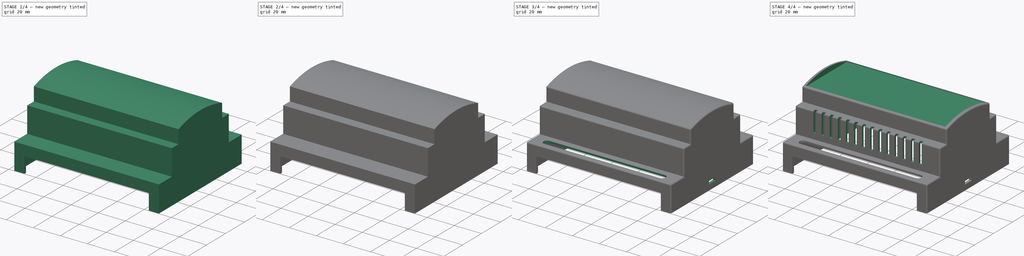
[diagram: build sequence overview — one tinted view per stage of 4, left to right]
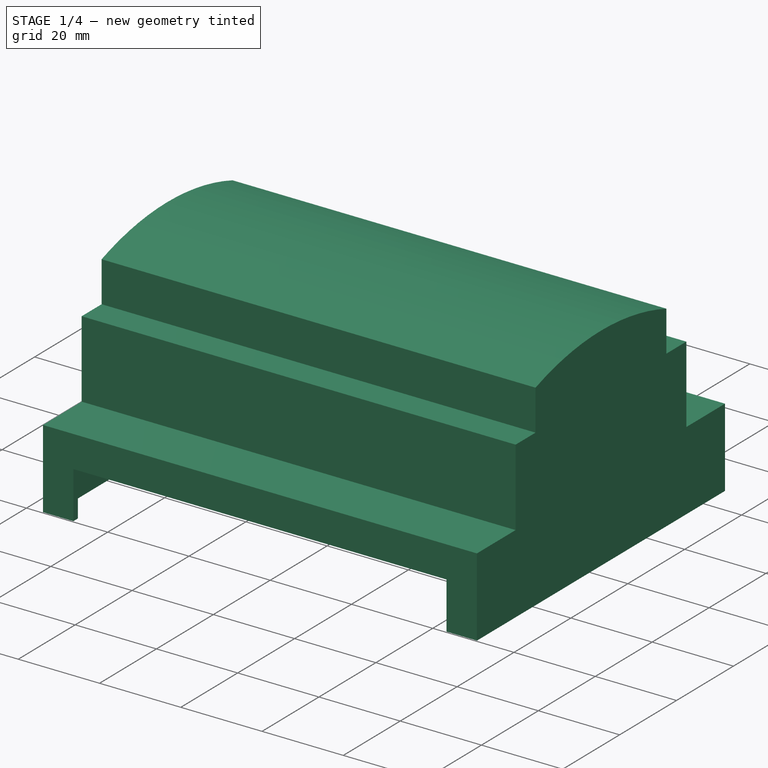
[diagram: stage 1 of 4 — iso view after this stage's code; geometry added in this stage tinted green]
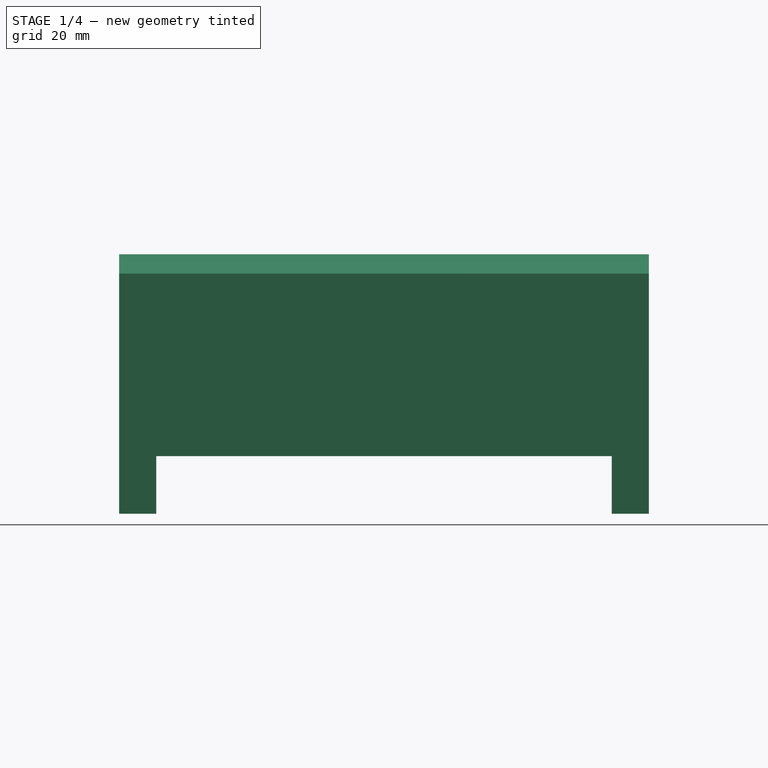
[diagram: stage 1 of 4 — front view after this stage's code; geometry added in this stage tinted green]
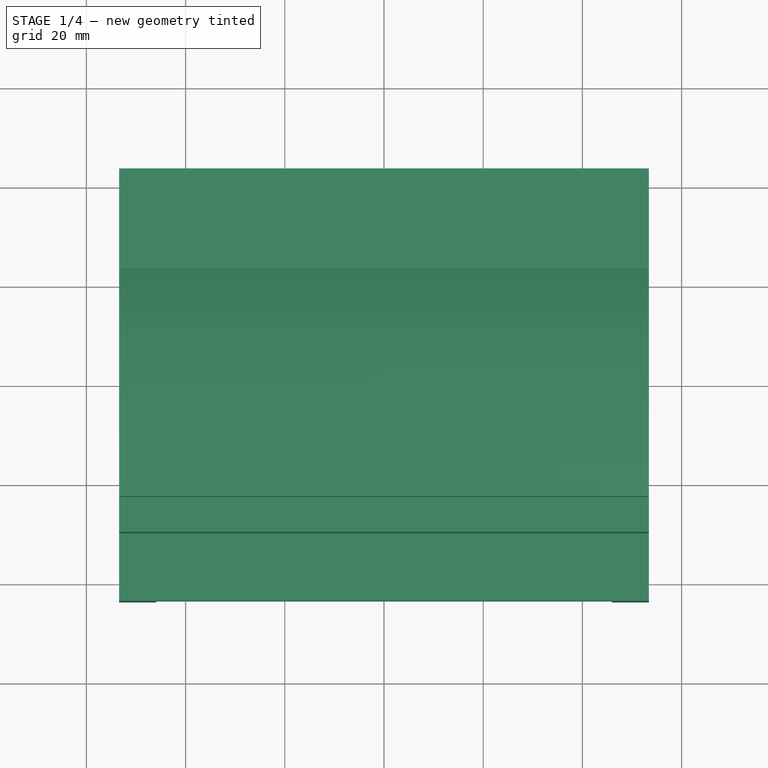
[diagram: stage 1 of 4 — top view after this stage's code; geometry added in this stage tinted green]
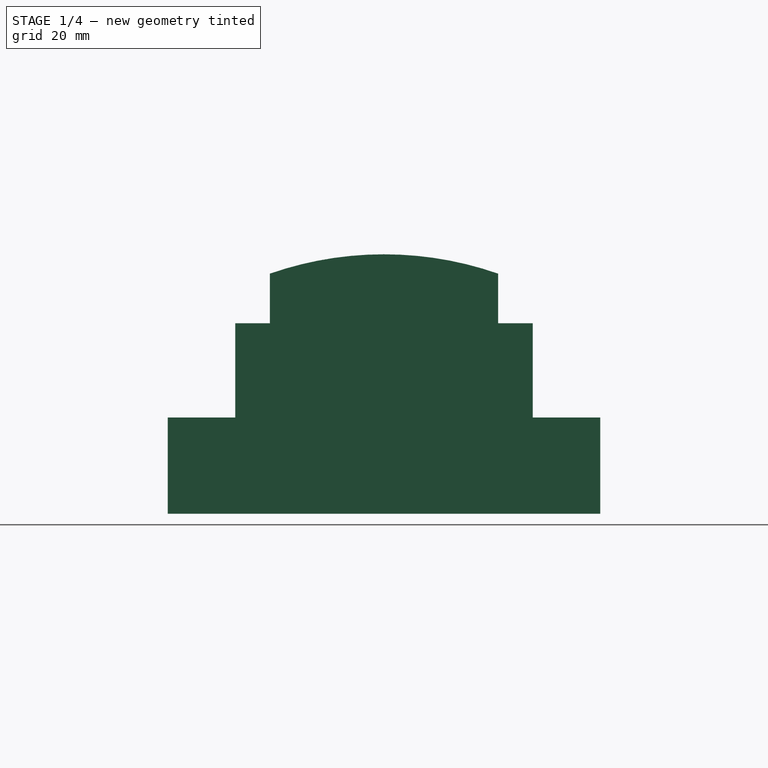
[diagram: stage 1 of 4 — right view after this stage's code; geometry added in this stage tinted green]
FCSTD DOCUMENT  (FreeCAD 1.0R39319 (Git))
Label: TOP Perfect PLC
License: All rights reserved
LicenseURL: https://en.wikipedia.org/wiki/All_rights_reserved
objects: Sketcher::SketchObject×11, PartDesign::Pocket×7, PartDesign::Pad×4, PartDesign::Mirrored×1, PartDesign::Fillet×1, PartDesign::Body×1
note: 61 computed .brp shape members not serialized (recipe doc carries the construction recipe); baked Part::Feature solids carry a one-line shape summary decoded from their .brp

FEATURE [Sketcher::SketchObject] Sketch
  ArcFitTolerance = 1e-06
  AttachmentSupport = -> [YZ_Plane]
  FullyConstrained = true
  MakeInternals = false
  MapMode = 5
  Placement = pos=(0,0,0) rot=(0.57735,0.57735,0.57735;2.0944rad)
  sketch-geometry (25):
    g0: LineSegment StartX=-42 StartY=0 StartZ=0 EndX=-42 EndY=18 EndZ=0
    g1: LineSegment StartX=-42 StartY=18 StartZ=0 EndX=-28.5 EndY=18 EndZ=0
    g2: LineSegment StartX=-28.5 StartY=18 StartZ=0 EndX=-28.5 EndY=37 EndZ=0
    g3: LineSegment StartX=-28.5 StartY=37 StartZ=0 EndX=-21.5 EndY=37 EndZ=0
    g4: LineSegment StartX=-21.5 StartY=37 StartZ=0 EndX=-21.5 EndY=47 EndZ=0
    g5: LineSegment StartX=-21.5 StartY=47 StartZ=0 EndX=21.5 EndY=47 EndZ=0
    g6: LineSegment StartX=21.5 StartY=47 StartZ=0 EndX=21.5 EndY=37 EndZ=0
    g7: LineSegment StartX=21.5 StartY=37 StartZ=0 EndX=28.5 EndY=37 EndZ=0
    g8: LineSegment StartX=28.5 StartY=37 StartZ=0 EndX=28.5 EndY=18 EndZ=0
    g9: LineSegment StartX=28.5 StartY=18 StartZ=0 EndX=42 EndY=18 EndZ=0
    g10: LineSegment StartX=42 StartY=18 StartZ=0 EndX=42 EndY=0 EndZ=0
    g11: LineSegment StartX=42 StartY=0 StartZ=0 EndX=-42 EndY=0 EndZ=0
    g12: LineSegment StartX=-42 StartY=0 StartZ=0 EndX=-43.6 EndY=0 EndZ=0
    g13: LineSegment StartX=-43.6 StartY=0 StartZ=0 EndX=-43.6 EndY=19.4 EndZ=0
    g14: LineSegment StartX=-43.6 StartY=19.4 StartZ=0 EndX=-30 EndY=19.4 EndZ=0
    g15: LineSegment StartX=-30 StartY=19.4 StartZ=0 EndX=-30 EndY=38.4 EndZ=0
    g16: LineSegment StartX=-30 StartY=38.4 StartZ=0 EndX=-23 EndY=38.4 EndZ=0
    g17: LineSegment StartX=-23 StartY=38.4 StartZ=0 EndX=-23 EndY=48.4 EndZ=0
    g18: LineSegment StartX=42 StartY=0 StartZ=0 EndX=43.6 EndY=0 EndZ=0
    g19: LineSegment StartX=43.6 StartY=0 StartZ=0 EndX=43.6 EndY=19.4 EndZ=0
    g20: LineSegment StartX=43.6 StartY=19.4 StartZ=0 EndX=30 EndY=19.4 EndZ=0
    g21: LineSegment StartX=30 StartY=19.4 StartZ=0 EndX=30 EndY=38.4 EndZ=0
    g22: LineSegment StartX=30 StartY=38.4 StartZ=0 EndX=23 EndY=38.4 EndZ=0
    g23: LineSegment StartX=23 StartY=38.4 StartZ=0 EndX=23 EndY=48.4 EndZ=0
    g24: ArcOfCircle CenterX=7.8226e-12 CenterY=-17.4705 CenterZ=0 NormalX=0 NormalY=0 NormalZ=1 AngleXU=0 Radius=69.7705 StartAngle=1.23486 EndAngle=1.90673
  constraints (69):
    c: PointOnObject(g0,g-1)
    c: Vertical(g0)
    c: Coincident(g1,g0)
    c: Horizontal(g1)
    c: Coincident(g2,g1)
    c: Vertical(g2)
    c: Coincident(g3,g2)
    c: Horizontal(g3)
    c: Coincident(g4,g3)
    c: Vertical(g4)
    c: DistanceY(g0,g0) = 18
    c: DistanceY(g2,g2) = 19
    c: DistanceY(g4,g4) = 10
    c: Coincident(g5,g4)
    c: Horizontal(g5)
    c: Coincident(g6,g5)
    c: Vertical(g6)
    c: Coincident(g7,g6)
    c: Horizontal(g7)
    c: Coincident(g8,g7)
    c: Vertical(g8)
    c: Coincident(g9,g8)
    c: PointOnObject(g10,g-1)
    c: Vertical(g10)
    c: Coincident(g11,g10)
    c: Coincident(g11,g0)
    c: Symmetric(g3,g6,g-2)
    c: Symmetric(g8,g1,g-2)
    c: Coincident(g10,g9)
    c: Distance(g6,g4) = 43
    c: Distance(g8,g2) = 57
    c: Distance(g10,g0) = 84
    c: Symmetric(g9,g0,g-2)
    c: Coincident(g12,g0)
    c: PointOnObject(g12,g-1)
    c: Coincident(g13,g12)
    c: Vertical(g13)
    c: Coincident(g14,g13)
    c: Horizontal(g14)
    c: Coincident(g15,g14)
    c: Vertical(g15)
    c: Coincident(g16,g15)
    c: Horizontal(g16)
    c: Vertical(g17)
    c: Coincident(g18,g10)
    c: PointOnObject(g18,g-1)
    c: Coincident(g19,g18)
    c: Vertical(g19)
    c: Coincident(g20,g19)
    c: Horizontal(g20)
    c: Coincident(g21,g20)
    c: Vertical(g21)
    c: Horizontal(g22)
    c: Coincident(g23,g22)
    c: Vertical(g23)
    c: Coincident(g24,g17)
    c: Coincident(g24,g23)
    c: Symmetric(g24,g24,g-2)
    c: Distance(g23,g17) = 46
    c: Coincident(g17,g16)
    c: Coincident(g21,g22)
    c: Distance(g19,g13) = 87.2
    c: Distance(g21,g15) = 60
    c: Distance(g24,g5) = -5.3
    c: Distance(g1,g14) = 1.4
    c: Symmetric(g13,g19,g-2)
    c: Distance(g3,g16) = 1.4
    c: Symmetric(g15,g21,g-2)
    c: Distance(g17,g5) = 1.4
FEATURE [PartDesign::Pad] Pad
  Direction = (1,0,0)
  Length = 106.8
  Length2 = 10
  Midplane = true
  Placement = pos=(0,0,0) rot=(1,1,1;2.0944rad)
  Profile = -> Sketch [Edge15,Edge14,Edge13,Edge12,Edge16,Edge17,Edge18,Edge19,Edge20,Edge21,Edge22,Edge23,Edge24,Edge25]
  ReferenceAxis = -> Sketch [N_Axis]
  Refine = true
  Suppressed = false
  Type = 0
FEATURE [PartDesign::Pocket] Pocket
  BaseFeature = -> Pad
  Direction = (-1,0,0)
  Length = 102.8
  Length2 = 5
  Midplane = true
  Placement = pos=(0,0,0) rot=(1,1,1;2.0944rad)
  Profile = -> Sketch [Edge1,Edge12,Edge2,Edge3,Edge4,Edge5,Edge6,Edge7,Edge8,Edge9,Edge10,Edge11]
  ReferenceAxis = -> Sketch [N_Axis]
  Refine = true
  Suppressed = false
  Type = 0
FEATURE [Sketcher::SketchObject] Sketch001
  ArcFitTolerance = 1e-06
  AttachmentSupport = -> [Pocket]
  ExternalGeometry = -> [Pocket]
  FullyConstrained = true
  MakeInternals = false
  MapMode = 5
  Placement = pos=(-9.7e-15,-43.6,1.94e-14) rot=(0.57735,0.57735,-0.57735;2.0944rad)
  sketch-geometry (4):
    g0: LineSegment StartX=0 StartY=-45.925 StartZ=0 EndX=0 EndY=45.925 EndZ=0
    g1: LineSegment StartX=0 StartY=45.925 StartZ=0 EndX=-11.6 EndY=45.925 EndZ=0
    g2: LineSegment StartX=-11.6 StartY=45.925 StartZ=0 EndX=-11.6 EndY=-45.925 EndZ=0
    g3: LineSegment StartX=-11.6 StartY=-45.925 StartZ=0 EndX=0 EndY=-45.925 EndZ=0
  constraints (11):
    c: Coincident(g0,g1)
    c: Coincident(g1,g2)
    c: Coincident(g2,g3)
    c: Coincident(g3,g0)
    c: Vertical(g0)
    c: Horizontal(g1)
    c: Horizontal(g3)
    c: PointOnObject(g0,g-3)
    c: Symmetric(g2,g1,g-1)
    c: DistanceY(g2,g2) = 91.85
    c: Distance(g1,g1) = 11.6
FEATURE [PartDesign::Pocket] Pocket001
  BaseFeature = -> Pocket
  Direction = (0,1,0)
  Length = 5
  Length2 = 5
  Placement = pos=(0,0,0) rot=(1,1,1;2.0944rad)
  Profile = -> Sketch001
  ReferenceAxis = -> Sketch001 [N_Axis]
  Refine = true
  Suppressed = false
  Type = 1
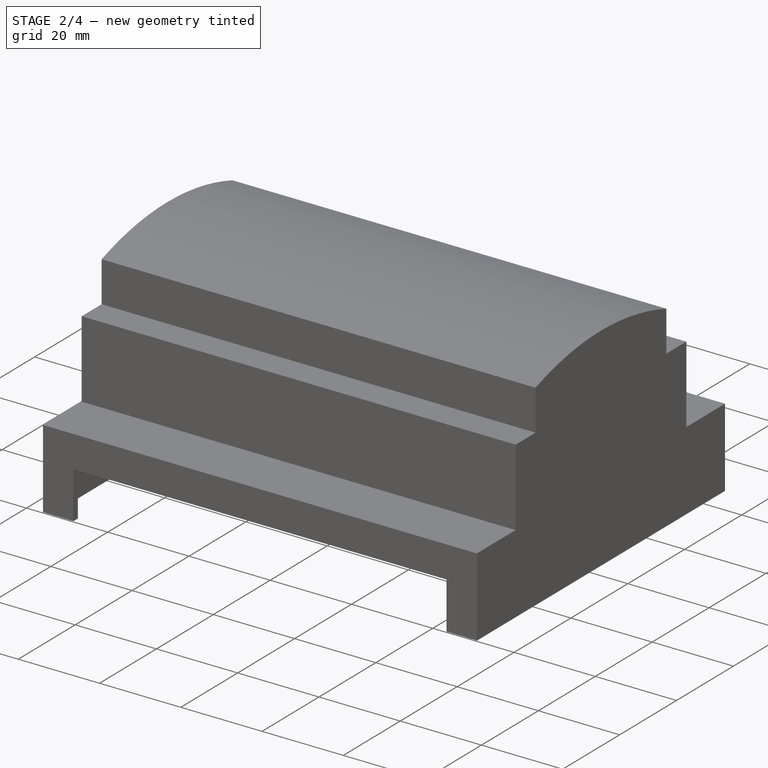
[diagram: stage 2 of 4 — iso view after this stage's code; geometry added in this stage tinted green]
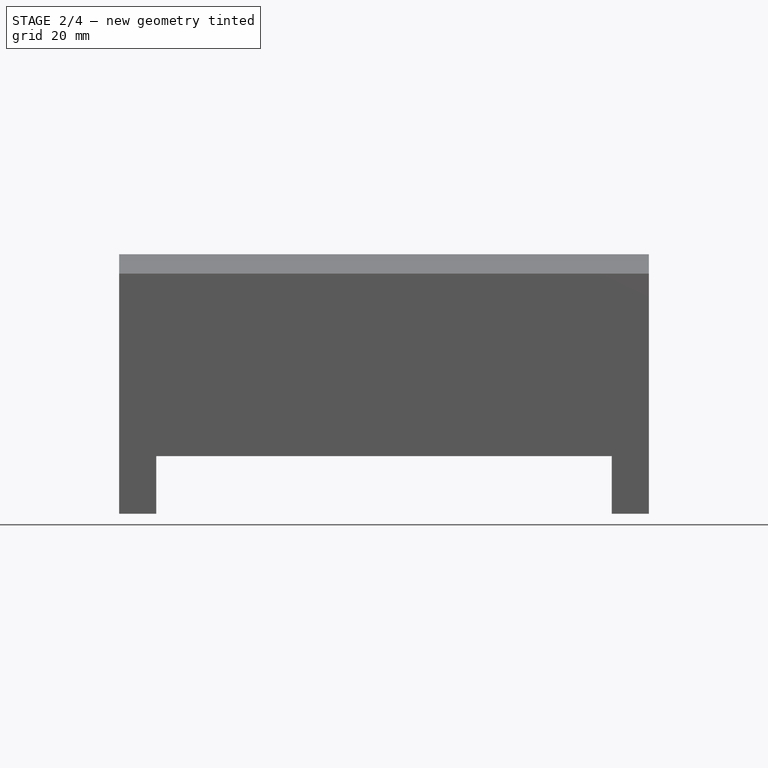
[diagram: stage 2 of 4 — front view after this stage's code; geometry added in this stage tinted green]
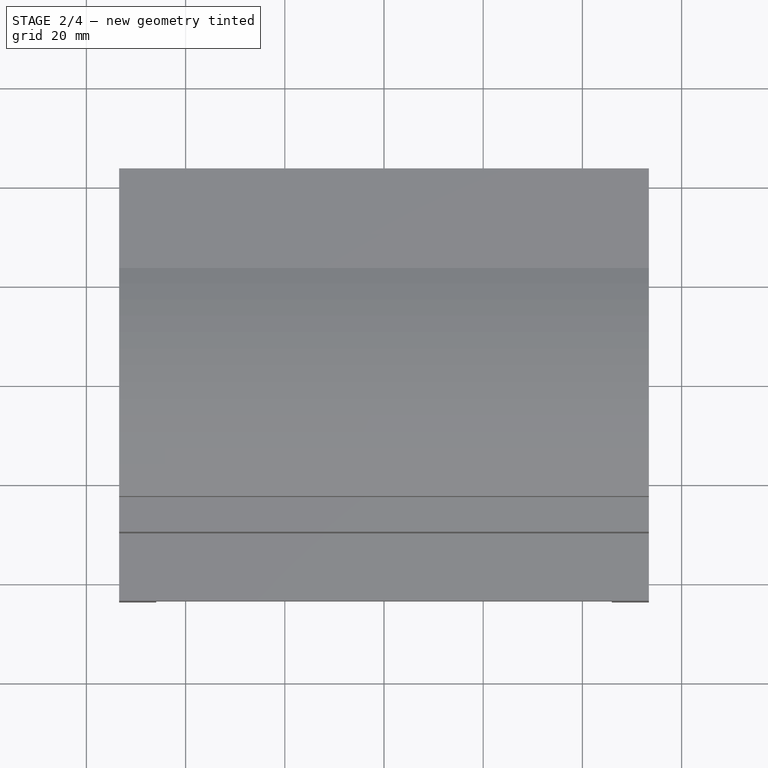
[diagram: stage 2 of 4 — top view after this stage's code; geometry added in this stage tinted green]
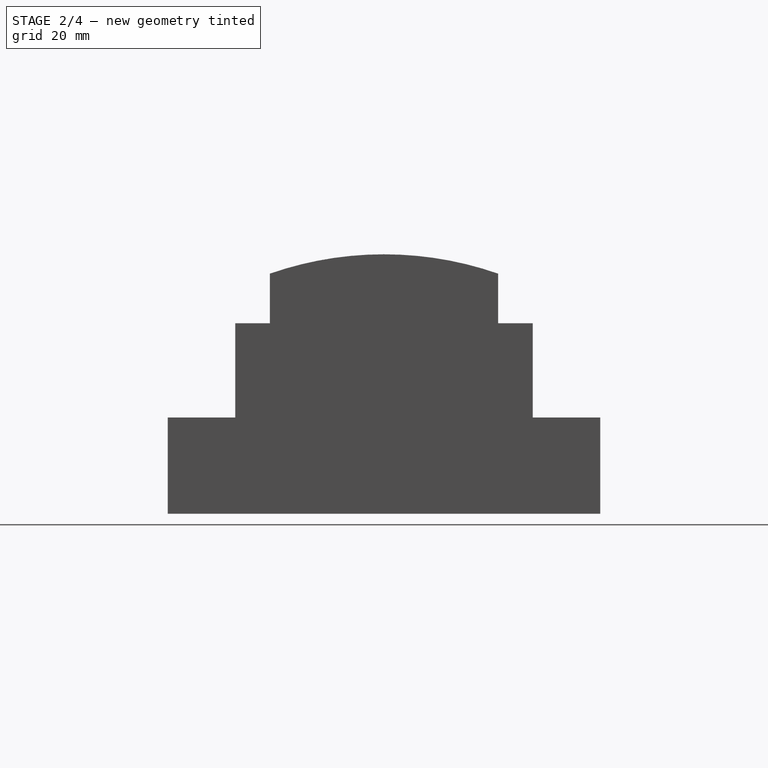
[diagram: stage 2 of 4 — right view after this stage's code; geometry added in this stage tinted green]
FEATURE [Sketcher::SketchObject] Sketch002
  ArcFitTolerance = 1e-06
  AttachmentSupport = -> [Pocket001]
  FullyConstrained = true
  MakeInternals = false
  MapMode = 5
  Placement = pos=(51.4,-2.28e-14,1.14e-14) rot=(0.57735,0.57735,-0.57735;4.18879rad)
FEATURE [Sketcher::SketchObject] Sketch003
  ArcFitTolerance = 1e-06
  AttachmentSupport = -> [Pocket001]
  ExternalGeometry = -> [Pocket001]
  FullyConstrained = false
  MakeInternals = false
  MapMode = 5
  Placement = pos=(51.4,-2.28e-14,1.14e-14) rot=(0.57735,0.57735,-0.57735;4.18879rad)
  sketch-geometry (18):
    g0: LineSegment StartX=-13.75 StartY=-47 StartZ=0 EndX=-13 EndY=-47 EndZ=0
    g1: LineSegment StartX=-13 StartY=-47 StartZ=0 EndX=-13 EndY=-14.4 EndZ=0
    g2: LineSegment StartX=-13 StartY=-14.4 StartZ=0 EndX=-13.75 EndY=-14.4 EndZ=0
    g3: LineSegment StartX=-13.75 StartY=-14.4 StartZ=0 EndX=-13.75 EndY=-47 EndZ=0
    g4: LineSegment StartX=-11 StartY=-47 StartZ=0 EndX=-10.25 EndY=-47 EndZ=0
    g5: LineSegment StartX=-10.25 StartY=-47 StartZ=0 EndX=-10.25 EndY=-14.4 EndZ=0
    g6: LineSegment StartX=-10.25 StartY=-14.4 StartZ=0 EndX=-11 EndY=-14.4 EndZ=0
    g7: LineSegment StartX=-11 StartY=-14.4 StartZ=0 EndX=-11 EndY=-47 EndZ=0
    g8: LineSegment StartX=10.25 StartY=-47 StartZ=0 EndX=11 EndY=-47 EndZ=0
    g9: LineSegment StartX=11 StartY=-47 StartZ=0 EndX=11 EndY=-14.4 EndZ=0
    g10: LineSegment StartX=11 StartY=-14.4 StartZ=0 EndX=10.25 EndY=-14.4 EndZ=0
    g11: LineSegment StartX=10.25 StartY=-14.4 StartZ=0 EndX=10.25 EndY=-47 EndZ=0
    g12: LineSegment StartX=13 StartY=-47 StartZ=0 EndX=13.75 EndY=-47 EndZ=0
    g13: LineSegment StartX=13.75 StartY=-47 StartZ=0 EndX=13.75 EndY=-14.4 EndZ=0
    g14: LineSegment StartX=13.75 StartY=-14.4 StartZ=0 EndX=13 EndY=-14.4 EndZ=0
    g15: LineSegment StartX=13 StartY=-14.4 StartZ=0 EndX=13 EndY=-47 EndZ=0
    g16: LineSegment [constr] StartX=-12 StartY=-14.5351 StartZ=0 EndX=-12 EndY=-18.3557 EndZ=0
    g17: LineSegment [constr] StartX=12 StartY=-13.6193 StartZ=0 EndX=12 EndY=-16.9151 EndZ=0
  constraints (48):
    c: Coincident(g0,g1)
    c: Coincident(g1,g2)
    c: Coincident(g2,g3)
    c: Coincident(g3,g0)
    c: Horizontal(g0)
    c: Horizontal(g2)
    c: Vertical(g1)
    c: Vertical(g3)
    c: PointOnObject(g0,g-3)
    c: Coincident(g4,g5)
    c: Coincident(g5,g6)
    c: Coincident(g6,g7)
    c: Coincident(g7,g4)
    c: Horizontal(g4)
    c: Horizontal(g6)
    c: Vertical(g5)
    c: Vertical(g7)
    c: PointOnObject(g4,g-3)
    c: Coincident(g8,g9)
    c: Coincident(g9,g10)
    c: Coincident(g10,g11)
    c: Coincident(g11,g8)
    c: Horizontal(g8)
    c: Horizontal(g10)
    c: Vertical(g9)
    c: Vertical(g11)
    c: Coincident(g12,g13)
    c: Coincident(g13,g14)
    c: Coincident(g14,g15)
    c: Coincident(g15,g12)
    c: Horizontal(g12)
    c: Horizontal(g14)
    c: Vertical(g13)
    c: Vertical(g15)
    c: PointOnObject(g12,g-3)
    c: Symmetric(g10,g5,g-2)
    c: Symmetric(g14,g1,g-2)
    c: Equal(g0,g4)
    c: Equal(g4,g8)
    c: Equal(g8,g12)
    c: PointOnObject(g8,g-3)
    c: Equal(g7,g3)
    c: DistanceY(g3,g3) = 32.6
    c: Distance(g2,g2) = 0.75
    c: Distance(g7,g1) = 2
    c: Symmetric(g1,g6,g16)
    c: Symmetric(g9,g14,g17)
    c: Distance(g16,g17) = 24
FEATURE [PartDesign::Pad] Pad001
  BaseFeature = -> Pocket001
  Direction = (-1,0,0)
  Length = 1
  Length2 = 10
  Placement = pos=(0,0,0) rot=(1,1,1;2.0944rad)
  Profile = -> Sketch003
  ReferenceAxis = -> Sketch003 [N_Axis]
  Refine = true
  Suppressed = false
  Type = 0
FEATURE [Sketcher::SketchObject] Sketch004
  ArcFitTolerance = 1e-06
  AttachmentSupport = -> [Pad001]
  ExternalGeometry = -> [Pad001]
  FullyConstrained = false
  MakeInternals = false
  MapMode = 5
  Placement = pos=(-51.4,3.42e-14,-1.71e-14) rot=(0.57735,0.57735,0.57735;2.0944rad)
  sketch-geometry (18):
    g0: LineSegment StartX=-13.75 StartY=14.4 StartZ=0 EndX=-13 EndY=14.4 EndZ=0
    g1: LineSegment StartX=-13 StartY=14.4 StartZ=0 EndX=-13 EndY=47 EndZ=0
    g2: LineSegment StartX=-13 StartY=47 StartZ=0 EndX=-13.75 EndY=47 EndZ=0
    g3: LineSegment StartX=-13.75 StartY=47 StartZ=0 EndX=-13.75 EndY=14.4 EndZ=0
    g4: LineSegment StartX=-11 StartY=14.4 StartZ=0 EndX=-10.25 EndY=14.4 EndZ=0
    g5: LineSegment StartX=-10.25 StartY=14.4 StartZ=0 EndX=-10.25 EndY=47 EndZ=0
    g6: LineSegment StartX=-10.25 StartY=47 StartZ=0 EndX=-11 EndY=47 EndZ=0
    g7: LineSegment StartX=-11 StartY=47 StartZ=0 EndX=-11 EndY=14.4 EndZ=0
    g8: LineSegment StartX=10.25 StartY=14.4 StartZ=0 EndX=11 EndY=14.4 EndZ=0
    g9: LineSegment StartX=11 StartY=14.4 StartZ=0 EndX=11 EndY=47 EndZ=0
    g10: LineSegment StartX=11 StartY=47 StartZ=0 EndX=10.25 EndY=47 EndZ=0
    g11: LineSegment StartX=10.25 StartY=47 StartZ=0 EndX=10.25 EndY=14.4 EndZ=0
    g12: LineSegment StartX=13 StartY=14.4 StartZ=0 EndX=13.75 EndY=14.4 EndZ=0
    g13: LineSegment StartX=13.75 StartY=14.4 StartZ=0 EndX=13.75 EndY=47 EndZ=0
    g14: LineSegment StartX=13.75 StartY=47 StartZ=0 EndX=13 EndY=47 EndZ=0
    g15: LineSegment StartX=13 StartY=47 StartZ=0 EndX=13 EndY=14.4 EndZ=0
    g16: LineSegment [constr] StartX=12 StartY=18.8237 StartZ=0 EndX=12 EndY=12.128 EndZ=0
    g17: LineSegment [constr] StartX=-12 StartY=15.6611 StartZ=0 EndX=-12 EndY=11.8613 EndZ=0
  constraints (48):
    c: Coincident(g0,g1)
    c: Coincident(g1,g2)
    c: Coincident(g2,g3)
    c: Coincident(g3,g0)
    c: Horizontal(g0)
    c: Horizontal(g2)
    c: Vertical(g1)
    c: Vertical(g3)
    c: Coincident(g4,g5)
    c: Coincident(g5,g6)
    c: Coincident(g6,g7)
    c: Coincident(g7,g4)
    c: Horizontal(g4)
    c: Horizontal(g6)
    c: Vertical(g5)
    c: Vertical(g7)
    c: Coincident(g8,g9)
    c: Coincident(g9,g10)
    c: Coincident(g10,g11)
    c: Coincident(g11,g8)
    c: Horizontal(g8)
    c: Horizontal(g10)
    c: Vertical(g9)
    c: Vertical(g11)
    c: Coincident(g12,g13)
    c: Coincident(g13,g14)
    c: Coincident(g14,g15)
    c: Coincident(g15,g12)
    c: Horizontal(g12)
    c: Horizontal(g14)
    c: Vertical(g13)
    c: Vertical(g15)
    c: Symmetric(g10,g5,g-2)
    c: Symmetric(g14,g1,g-2)
    c: Equal(g0,g4)
    c: Equal(g4,g8)
    c: Equal(g8,g12)
    c: Equal(g7,g3)
    c: DistanceY(g3,g3) = 32.6
    c: Distance(g2,g2) = 0.75
    c: PointOnObject(g2,g-3)
    c: PointOnObject(g5,g-3)
    c: Equal(g9,g7)
    c: Equal(g15,g1)
    c: Symmetric(g0,g4,g17)
    c: Symmetric(g8,g12,g16)
    c: Distance(g16,g17) = 24
    c: Distance(g15,g9) = 2
FEATURE [PartDesign::Pad] Pad002
  BaseFeature = -> Pad001
  Direction = (1,0,0)
  Length = 1
  Length2 = 10
  Placement = pos=(0,0,0) rot=(1,1,1;2.0944rad)
  Profile = -> Sketch004
  ReferenceAxis = -> Sketch004 [N_Axis]
  Refine = true
  Suppressed = false
  Type = 0
FEATURE [Sketcher::SketchObject] Sketch005
  ArcFitTolerance = 1e-06
  AttachmentSupport = -> [Pad002]
  ExternalGeometry = -> [Pad002]
  FullyConstrained = true
  MakeInternals = false
  MapMode = 5
  Placement = pos=(-6.3e-15,-28.5,3.16e-14) rot=(0.57735,0.57735,0.57735;4.18879rad)
  sketch-geometry (16):
    g0: LineSegment StartX=37 StartY=-48.75 StartZ=0 EndX=37 EndY=-48 EndZ=0
    g1: LineSegment StartX=37 StartY=-48 StartZ=0 EndX=21 EndY=-48 EndZ=0
    g2: LineSegment StartX=21 StartY=-48 StartZ=0 EndX=21 EndY=-48.75 EndZ=0
    g3: LineSegment StartX=21 StartY=-48.75 StartZ=0 EndX=37 EndY=-48.75 EndZ=0
    g4: LineSegment StartX=37 StartY=-46 StartZ=0 EndX=37 EndY=-45.25 EndZ=0
    g5: LineSegment StartX=37 StartY=-45.25 StartZ=0 EndX=21 EndY=-45.25 EndZ=0
    g6: LineSegment StartX=21 StartY=-45.25 StartZ=0 EndX=21 EndY=-46 EndZ=0
    g7: LineSegment StartX=21 StartY=-46 StartZ=0 EndX=37 EndY=-46 EndZ=0
    g8: LineSegment StartX=37 StartY=48.75 StartZ=0 EndX=21 EndY=48.75 EndZ=0
    g9: LineSegment StartX=21 StartY=48.75 StartZ=0 EndX=21 EndY=48 EndZ=0
    g10: LineSegment StartX=21 StartY=48 StartZ=0 EndX=37 EndY=48 EndZ=0
    g11: LineSegment StartX=37 StartY=48 StartZ=0 EndX=37 EndY=48.75 EndZ=0
    g12: LineSegment StartX=37 StartY=46 StartZ=0 EndX=21 EndY=46 EndZ=0
    g13: LineSegment StartX=21 StartY=46 StartZ=0 EndX=21 EndY=45.25 EndZ=0
    g14: LineSegment StartX=21 StartY=45.25 StartZ=0 EndX=37 EndY=45.25 EndZ=0
    g15: LineSegment StartX=37 StartY=45.25 StartZ=0 EndX=37 EndY=46 EndZ=0
  constraints (46):
    c: Coincident(g0,g1)
    c: Coincident(g1,g2)
    c: Coincident(g2,g3)
    c: Coincident(g3,g0)
    c: Vertical(g0)
    c: Vertical(g2)
    c: Horizontal(g1)
    c: Horizontal(g3)
    c: PointOnObject(g0,g-3)
    c: Coincident(g4,g5)
    c: Coincident(g5,g6)
    c: Coincident(g6,g7)
    c: Coincident(g7,g4)
    c: Vertical(g4)
    c: Vertical(g6)
    c: Horizontal(g5)
    c: Horizontal(g7)
    c: PointOnObject(g4,g-3)
    c: Coincident(g8,g9)
    c: Coincident(g9,g10)
    c: Coincident(g10,g11)
    c: Coincident(g11,g8)
    c: Horizontal(g8)
    c: Horizontal(g10)
    c: Vertical(g9)
    c: Vertical(g11)
    c: PointOnObject(g8,g-3)
    c: Coincident(g12,g13)
    c: Coincident(g13,g14)
    c: Coincident(g14,g15)
    c: Coincident(g15,g12)
    c: Horizontal(g12)
    c: Horizontal(g14)
    c: Vertical(g13)
    c: Vertical(g15)
    c: PointOnObject(g12,g-3)
    c: Equal(g2,g6)
    c: Equal(g6,g13)
    c: Equal(g13,g9)
    c: Symmetric(g13,g5,g-1)
    c: Symmetric(g9,g1,g-1)
    c: Equal(g1,g7)
    c: DistanceY(g1,g6) = 2
    c: DistanceY(g2,g2) = 0.75
    c: DistanceX(g5,g5) = 16
    c: DistanceY(g4,g12) = 92
FEATURE [PartDesign::Pad] Pad003
  BaseFeature = -> Pad002
  Direction = (-1e-16,1,-1e-15)
  Length = 0.75
  Length2 = 10
  Placement = pos=(0,0,0) rot=(1,1,1;2.0944rad)
  Profile = -> Sketch005
  ReferenceAxis = -> Sketch005 [N_Axis]
  Refine = true
  Suppressed = false
  Type = 0
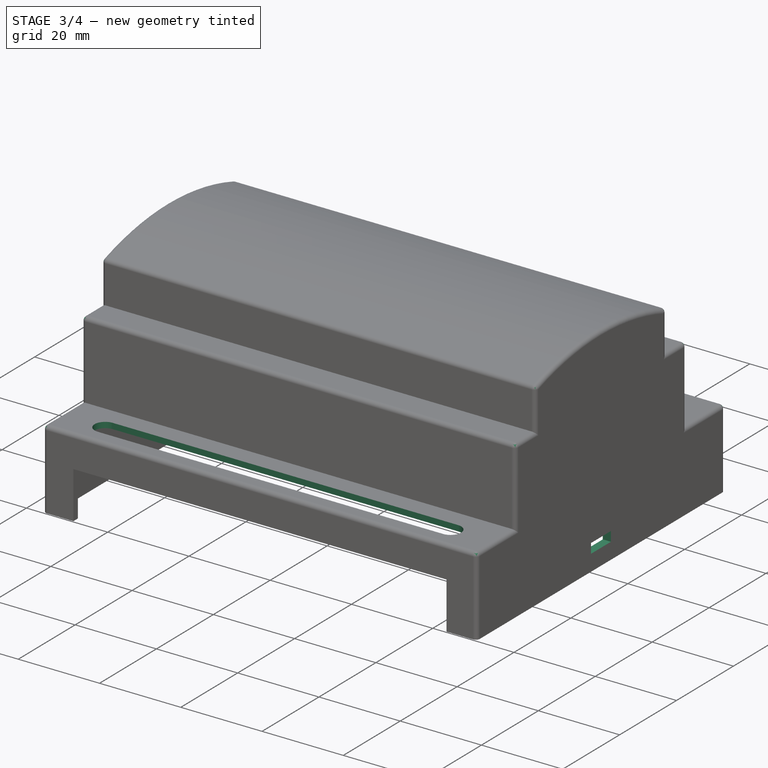
[diagram: stage 3 of 4 — iso view after this stage's code; geometry added in this stage tinted green]
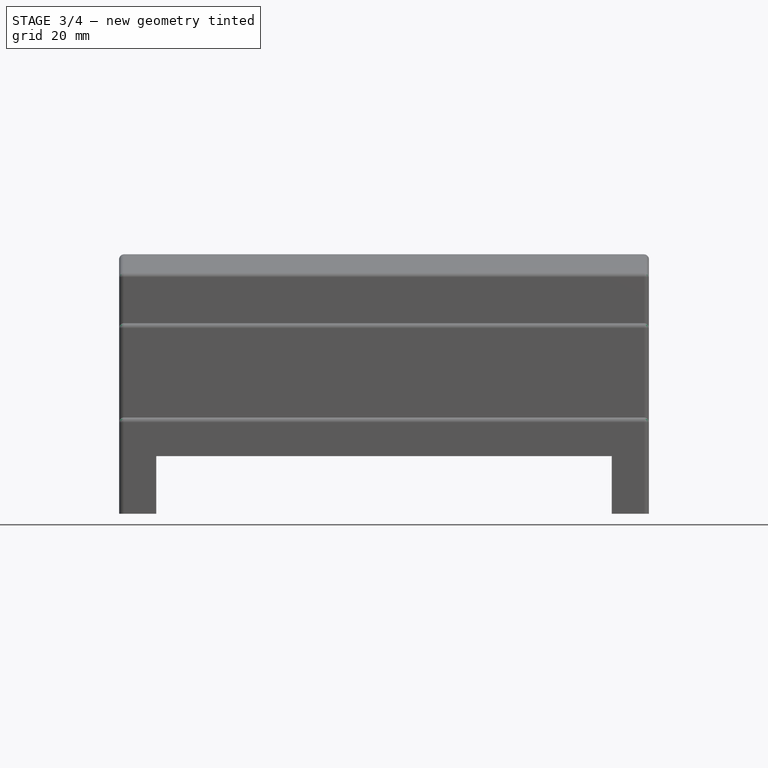
[diagram: stage 3 of 4 — front view after this stage's code; geometry added in this stage tinted green]
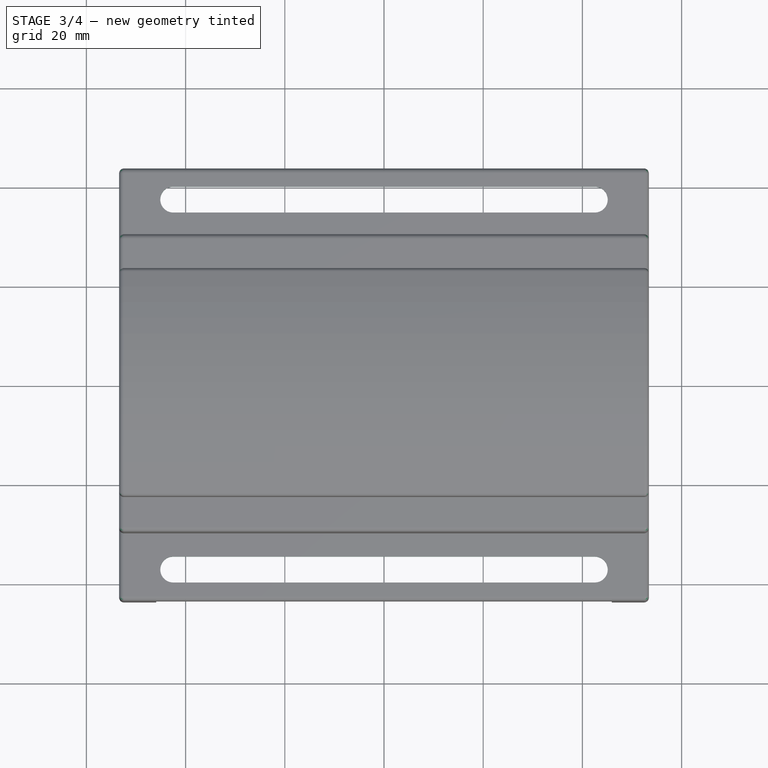
[diagram: stage 3 of 4 — top view after this stage's code; geometry added in this stage tinted green]
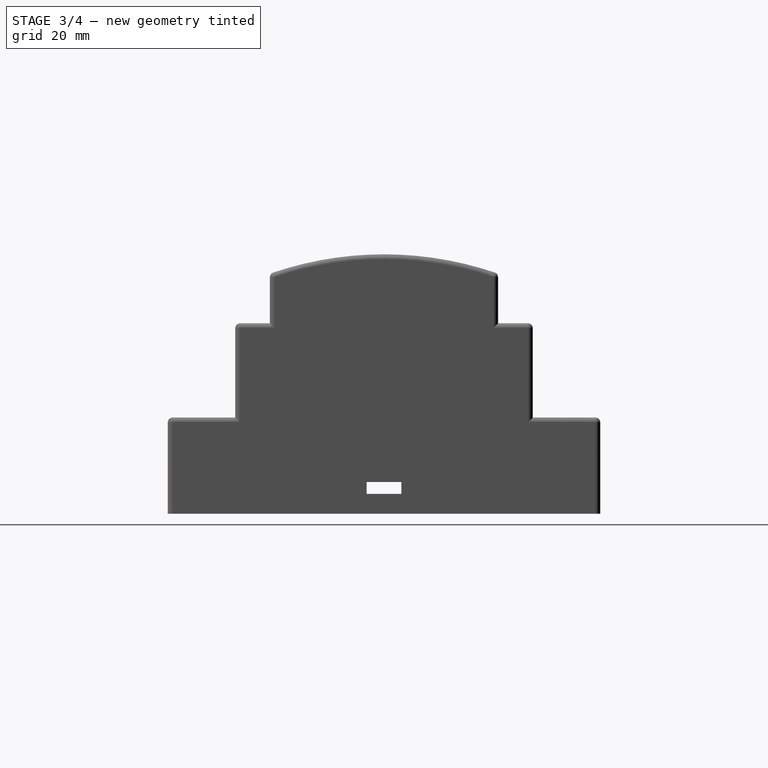
[diagram: stage 3 of 4 — right view after this stage's code; geometry added in this stage tinted green]
FEATURE [PartDesign::Mirrored] Mirrored
  BaseFeature = -> Pad003
  MirrorPlane = -> XZ_Plane
  Originals = -> [Pad003]
  Placement = pos=(0,0,0) rot=(1,1,1;2.0944rad)
  Refine = true
  Suppressed = false
  TransformMode = 0
FEATURE [Sketcher::SketchObject] Sketch006
  ArcFitTolerance = 1e-06
  AttachmentSupport = -> [Mirrored]
  FullyConstrained = true
  MakeInternals = false
  MapMode = 5
  Placement = pos=(-3.45e-14,1.72e-14,19.4) rot=(0,0,-1;1.5708rad)
  sketch-geometry (8):
    g0: LineSegment StartX=34.7 StartY=42.5 StartZ=0 EndX=34.7 EndY=-42.5 EndZ=0
    g1: ArcOfCircle CenterX=37.3 CenterY=-42.5 CenterZ=0 NormalX=0 NormalY=0 NormalZ=1 AngleXU=0 Radius=2.6 StartAngle=3.14159 EndAngle=6.28319
    g2: LineSegment StartX=39.9 StartY=-42.5 StartZ=0 EndX=39.9 EndY=42.5 EndZ=0
    g3: ArcOfCircle CenterX=37.3 CenterY=42.5 CenterZ=0 NormalX=0 NormalY=0 NormalZ=1 AngleXU=0 Radius=2.6 StartAngle=-9e-16 EndAngle=3.14159
    g4: LineSegment StartX=-39.9 StartY=42.5 StartZ=0 EndX=-39.9 EndY=-42.5 EndZ=0
    g5: ArcOfCircle CenterX=-37.3 CenterY=-42.5 CenterZ=0 NormalX=0 NormalY=0 NormalZ=1 AngleXU=0 Radius=2.6 StartAngle=3.14159 EndAngle=6.28319
    g6: LineSegment StartX=-34.7 StartY=-42.5 StartZ=0 EndX=-34.7 EndY=42.5 EndZ=0
    g7: ArcOfCircle CenterX=-37.3 CenterY=42.5 CenterZ=0 NormalX=0 NormalY=0 NormalZ=1 AngleXU=0 Radius=2.6 StartAngle=1.3e-15 EndAngle=3.14159
  constraints (21):
    c: Vertical(g0)
    c: Tangent(g0,g1) = -1.5708
    c: Coincident(g1,g2)
    c: Tangent(g2,g3) = -1.5708
    c: Coincident(g3,g0)
    c: Equal(g2,g0)
    c: Horizontal(g0,g2)
    c: DistanceY(g1,g3) = 85
    c: Symmetric(g1,g2,g-1)
    c: Vertical(g4)
    c: Tangent(g4,g5) = -1.5708
    c: Coincident(g5,g6)
    c: Tangent(g6,g7) = -1.5708
    c: Coincident(g7,g4)
    c: Equal(g6,g4)
    c: Horizontal(g4,g6)
    c: Symmetric(g5,g6,g-1)
    c: Equal(g1,g5)
    c: Distance(g6,g4) = 5.2
    c: Distance(g7,g3) = 74.6
    c: Symmetric(g6,g0,g-2)
FEATURE [PartDesign::Pocket] Pocket002
  BaseFeature = -> Mirrored
  Direction = (1.8e-15,0,-1)
  Length = 5
  Length2 = 5
  Placement = pos=(0,0,0) rot=(1,1,1;2.0944rad)
  Profile = -> Sketch006
  ReferenceAxis = -> Sketch006 [N_Axis]
  Refine = true
  Suppressed = false
  Type = 1
FEATURE [Sketcher::SketchObject] Sketch007
  ArcFitTolerance = 1e-06
  AttachmentSupport = -> [Pocket002]
  ExternalGeometry = -> [Pocket002]
  FullyConstrained = true
  MakeInternals = false
  MapMode = 5
  Placement = pos=(6.7e-15,30,-6.33e-14) rot=(0.57735,0.57735,0.57735;4.18879rad)
  sketch-geometry (69):
    g0: LineSegment StartX=38.4 StartY=-39.95 StartZ=0 EndX=24.4 EndY=-39.95 EndZ=0
    g1: ArcOfCircle CenterX=24.4 CenterY=-38.95 CenterZ=0 NormalX=0 NormalY=0 NormalZ=1 AngleXU=0 Radius=1 StartAngle=1.5708 EndAngle=4.71239
    g2: LineSegment StartX=24.4 StartY=-37.95 StartZ=0 EndX=38.4 EndY=-37.95 EndZ=0
    g3: LineSegment StartX=38.4 StartY=-37.95 StartZ=0 EndX=38.4 EndY=-39.95 EndZ=0
    g4: LineSegment StartX=38.4 StartY=-33.9577 StartZ=0 EndX=24.4 EndY=-33.9577 EndZ=0
    g5: ArcOfCircle CenterX=24.4 CenterY=-32.9577 CenterZ=0 NormalX=0 NormalY=0 NormalZ=1 AngleXU=0 Radius=1 StartAngle=1.5708 EndAngle=4.71239
    g6: LineSegment StartX=24.4 StartY=-31.9577 StartZ=0 EndX=38.4 EndY=-31.9577 EndZ=0
    g7: LineSegment StartX=38.4 StartY=-31.9577 StartZ=0 EndX=38.4 EndY=-33.9577 EndZ=0
    g8: LineSegment StartX=38.4 StartY=-27.9654 StartZ=0 EndX=24.4 EndY=-27.9654 EndZ=0
    g9: ArcOfCircle CenterX=24.4 CenterY=-26.9654 CenterZ=0 NormalX=0 NormalY=0 NormalZ=1 AngleXU=0 Radius=1 StartAngle=1.5708 EndAngle=4.71239
    g10: LineSegment StartX=24.4 StartY=-25.9654 StartZ=0 EndX=38.4 EndY=-25.9654 EndZ=0
    g11: LineSegment StartX=38.4 StartY=-25.9654 StartZ=0 EndX=38.4 EndY=-27.9654 EndZ=0
    g12: LineSegment StartX=38.4 StartY=-21.9731 StartZ=0 EndX=24.4 EndY=-21.9731 EndZ=0
    g13: ArcOfCircle CenterX=24.4 CenterY=-20.9731 CenterZ=0 NormalX=0 NormalY=0 NormalZ=1 AngleXU=0 Radius=1 StartAngle=1.5708 EndAngle=4.71239
    g14: LineSegment StartX=24.4 StartY=-19.9731 StartZ=0 EndX=38.4 EndY=-19.9731 EndZ=0
    g15: LineSegment StartX=38.4 StartY=-19.9731 StartZ=0 EndX=38.4 EndY=-21.9731 EndZ=0
    g16: LineSegment StartX=38.4 StartY=-15.9808 StartZ=0 EndX=24.4 EndY=-15.9808 EndZ=0
    g17: ArcOfCircle CenterX=24.4 CenterY=-14.9808 CenterZ=0 NormalX=0 NormalY=0 NormalZ=1 AngleXU=0 Radius=1 StartAngle=1.5708 EndAngle=4.71239
    g18: LineSegment StartX=24.4 StartY=-13.9808 StartZ=0 EndX=38.4 EndY=-13.9808 EndZ=0
    g19: LineSegment StartX=38.4 StartY=-13.9808 StartZ=0 EndX=38.4 EndY=-15.9808 EndZ=0
    g20: LineSegment StartX=38.4 StartY=-9.98846 StartZ=0 EndX=24.4 EndY=-9.98846 EndZ=0
    g21: ArcOfCircle CenterX=24.4 CenterY=-8.98846 CenterZ=0 NormalX=0 NormalY=0 NormalZ=1 AngleXU=0 Radius=1 StartAngle=1.5708 EndAngle=4.71239
    g22: LineSegment StartX=24.4 StartY=-7.98846 StartZ=0 EndX=38.4 EndY=-7.98846 EndZ=0
    g23: LineSegment StartX=38.4 StartY=-7.98846 StartZ=0 EndX=38.4 EndY=-9.98846 EndZ=0
    g24: LineSegment StartX=38.4 StartY=-3.99615 StartZ=0 EndX=24.4 EndY=-3.99615 EndZ=0
    g25: ArcOfCircle CenterX=24.4 CenterY=-2.99615 CenterZ=0 NormalX=0 NormalY=0 NormalZ=1 AngleXU=0 Radius=1 StartAngle=1.5708 EndAngle=4.71239
    g26: LineSegment StartX=24.4 StartY=-1.99615 StartZ=0 EndX=38.4 EndY=-1.99615 EndZ=0
    g27: LineSegment StartX=38.4 StartY=-1.99615 StartZ=0 EndX=38.4 EndY=-3.99615 EndZ=0
    g28: LineSegment StartX=38.4 StartY=1.99615 StartZ=0 EndX=24.4 EndY=1.99615 EndZ=0
    g29: ArcOfCircle CenterX=24.4 CenterY=2.99615 CenterZ=0 NormalX=0 NormalY=0 NormalZ=1 AngleXU=0 Radius=1 StartAngle=1.5708 EndAngle=4.71239
    g30: LineSegment StartX=24.4 StartY=3.99615 StartZ=0 EndX=38.4 EndY=3.99615 EndZ=0
    g31: LineSegment StartX=38.4 StartY=3.99615 StartZ=0 EndX=38.4 EndY=1.99615 EndZ=0
    g32: LineSegment StartX=38.4 StartY=7.98846 StartZ=0 EndX=24.4 EndY=7.98846 EndZ=0
    g33: ArcOfCircle CenterX=24.4 CenterY=8.98846 CenterZ=0 NormalX=0 NormalY=0 NormalZ=1 AngleXU=0 Radius=1 StartAngle=1.5708 EndAngle=4.71239
    g34: LineSegment StartX=24.4 StartY=9.98846 StartZ=0 EndX=38.4 EndY=9.98846 EndZ=0
    g35: LineSegment StartX=38.4 StartY=9.98846 StartZ=0 EndX=38.4 EndY=7.98846 EndZ=0
    g36: LineSegment StartX=38.4 StartY=13.9808 StartZ=0 EndX=24.4 EndY=13.9808 EndZ=0
    g37: ArcOfCircle CenterX=24.4 CenterY=14.9808 CenterZ=0 NormalX=0 NormalY=0 NormalZ=1 AngleXU=0 Radius=1 StartAngle=1.5708 EndAngle=4.71239
    g38: LineSegment StartX=24.4 StartY=15.9808 StartZ=0 EndX=38.4 EndY=15.9808 EndZ=0
    g39: LineSegment StartX=38.4 StartY=15.9808 StartZ=0 EndX=38.4 EndY=13.9808 EndZ=0
    g40: LineSegment StartX=38.4 StartY=19.9731 StartZ=0 EndX=24.4 EndY=19.9731 EndZ=0
    g41: ArcOfCircle CenterX=24.4 CenterY=20.9731 CenterZ=0 NormalX=0 NormalY=0 NormalZ=1 AngleXU=0 Radius=1 StartAngle=1.5708 EndAngle=4.71239
    g42: LineSegment StartX=24.4 StartY=21.9731 StartZ=0 EndX=38.4 EndY=21.9731 EndZ=0
    g43: LineSegment StartX=38.4 StartY=21.9731 StartZ=0 EndX=38.4 EndY=19.9731 EndZ=0
    g44: LineSegment StartX=38.4 StartY=25.9654 StartZ=0 EndX=24.4 EndY=25.9654 EndZ=0
    g45: ArcOfCircle CenterX=24.4 CenterY=26.9654 CenterZ=0 NormalX=0 NormalY=0 NormalZ=1 AngleXU=0 Radius=1 StartAngle=1.5708 EndAngle=4.71239
    g46: LineSegment StartX=24.4 StartY=27.9654 StartZ=0 EndX=38.4 EndY=27.9654 EndZ=0
    g47: LineSegment StartX=38.4 StartY=27.9654 StartZ=0 EndX=38.4 EndY=25.9654 EndZ=0
    g48: LineSegment StartX=38.4 StartY=31.9577 StartZ=0 EndX=24.4 EndY=31.9577 EndZ=0
    g49: ArcOfCircle CenterX=24.4 CenterY=32.9577 CenterZ=0 NormalX=0 NormalY=0 NormalZ=1 AngleXU=0 Radius=1 StartAngle=1.5708 EndAngle=4.71239
    g50: LineSegment StartX=24.4 StartY=33.9577 StartZ=0 EndX=38.4 EndY=33.9577 EndZ=0
    g51: LineSegment StartX=38.4 StartY=33.9577 StartZ=0 EndX=38.4 EndY=31.9577 EndZ=0
    g52: LineSegment StartX=38.4 StartY=37.95 StartZ=0 EndX=24.4 EndY=37.95 EndZ=0
    g53: ArcOfCircle CenterX=24.4 CenterY=38.95 CenterZ=0 NormalX=0 NormalY=0 NormalZ=1 AngleXU=0 Radius=1 StartAngle=1.5708 EndAngle=4.71239
    g54: LineSegment StartX=24.4 StartY=39.95 StartZ=0 EndX=38.4 EndY=39.95 EndZ=0
    g55: LineSegment StartX=38.4 StartY=39.95 StartZ=0 EndX=38.4 EndY=37.95 EndZ=0
    g56: LineSegment [constr] StartX=24.4 StartY=-37.95 StartZ=0 EndX=24.4 EndY=-33.9577 EndZ=0
    g57: LineSegment [constr] StartX=24.4 StartY=-31.9577 StartZ=0 EndX=24.4 EndY=-27.9654 EndZ=0
    g58: LineSegment [constr] StartX=24.4 StartY=-25.9654 StartZ=0 EndX=24.4 EndY=-21.9731 EndZ=0
    g59: LineSegment [constr] StartX=24.4 StartY=-19.9731 StartZ=0 EndX=24.4 EndY=-15.9808 EndZ=0
    g60: LineSegment [constr] StartX=24.4 StartY=-13.9808 StartZ=0 EndX=24.4 EndY=-9.98846 EndZ=0
    g61: LineSegment [constr] StartX=24.4 StartY=-7.98846 StartZ=0 EndX=24.4 EndY=-3.99615 EndZ=0
    g62: LineSegment [constr] StartX=24.4 StartY=-1.99615 StartZ=0 EndX=24.4 EndY=1.99615 EndZ=0
    g63: LineSegment [constr] StartX=24.4 StartY=3.99615 StartZ=0 EndX=24.4 EndY=7.98846 EndZ=0
    g64: LineSegment [constr] StartX=24.4 StartY=9.98846 StartZ=0 EndX=24.4 EndY=13.9808 EndZ=0
    g65: LineSegment [constr] StartX=24.4 StartY=15.9808 StartZ=0 EndX=24.4 EndY=19.9731 EndZ=0
    g66: LineSegment [constr] StartX=24.4 StartY=21.9731 StartZ=0 EndX=24.4 EndY=25.9654 EndZ=0
    g67: LineSegment [constr] StartX=24.4 StartY=27.9654 StartZ=0 EndX=24.4 EndY=31.9577 EndZ=0
    g68: LineSegment [constr] StartX=24.4 StartY=33.9577 StartZ=0 EndX=24.4 EndY=37.95 EndZ=0
  constraints (193):
    c: PointOnObject(g0,g-3)
    c: Horizontal(g0)
    c: Tangent(g0,g1) = 1.5708
    c: Coincident(g1,g2)
    c: PointOnObject(g2,g-3)
    c: Horizontal(g2)
    c: Vertical(g0,g1)
    c: Coincident(g3,g2)
    c: Coincident(g3,g0)
    c: Horizontal(g4)
    c: Horizontal(g8)
    c: Horizontal(g12)
    c: Horizontal(g16)
    c: Horizontal(g20)
    c: Horizontal(g24)
    c: Horizontal(g28)
    c: Horizontal(g32)
    c: Horizontal(g36)
    c: Horizontal(g40)
    c: Horizontal(g44)
    c: Horizontal(g48)
    c: Horizontal(g52)
    c: Tangent(g4,g5) = 1.5708
    c: Tangent(g8,g9) = 1.5708
    c: Tangent(g12,g13) = 1.5708
    c: Tangent(g16,g17) = 1.5708
    c: Tangent(g20,g21) = 1.5708
    c: Tangent(g24,g25) = 1.5708
    c: Tangent(g28,g29) = 1.5708
    c: Tangent(g32,g33) = 1.5708
    c: Tangent(g36,g37) = 1.5708
    c: Tangent(g40,g41) = 1.5708
    c: Tangent(g44,g45) = 1.5708
    c: Tangent(g48,g49) = 1.5708
    c: Tangent(g52,g53) = 1.5708
    c: Coincident(g5,g6)
    c: Coincident(g9,g10)
    c: Coincident(g13,g14)
    c: Coincident(g17,g18)
    c: Coincident(g21,g22)
    c: Coincident(g25,g26)
    c: Coincident(g29,g30)
    c: Coincident(g33,g34)
    c: Coincident(g37,g38)
    c: Coincident(g41,g42)
    c: Coincident(g45,g46)
    c: Coincident(g49,g50)
    c: Coincident(g53,g54)
    c: Horizontal(g6)
    c: Horizontal(g10)
    c: Horizontal(g14)
    c: Horizontal(g18)
    c: Horizontal(g22)
    c: Horizontal(g26)
    c: Horizontal(g30)
    c: Horizontal(g34)
    c: Horizontal(g38)
    c: Horizontal(g42)
    c: Horizontal(g46)
    c: Horizontal(g50)
    c: Horizontal(g54)
    c: Vertical(g4,g5)
    c: Vertical(g8,g9)
    c: Vertical(g12,g13)
    c: Vertical(g16,g17)
    c: Vertical(g20,g21)
    c: Vertical(g24,g25)
    c: Vertical(g28,g29)
    c: Vertical(g32,g33)
    c: Vertical(g36,g37)
    c: Vertical(g40,g41)
    c: Vertical(g44,g45)
    c: Vertical(g48,g49)
    c: Vertical(g52,g53)
    c: Coincident(g7,g6)
    c: Coincident(g11,g10)
    c: Coincident(g15,g14)
    c: Coincident(g19,g18)
    c: Coincident(g23,g22)
    c: Coincident(g27,g26)
    c: Coincident(g31,g30)
    c: Coincident(g35,g34)
    c: Coincident(g39,g38)
    c: Coincident(g43,g42)
    c: Coincident(g47,g46)
    c: Coincident(g51,g50)
    c: Coincident(g55,g54)
    c: Coincident(g7,g4)
    c: Coincident(g11,g8)
    c: Coincident(g15,g12)
    c: Coincident(g19,g16)
    c: Coincident(g23,g20)
    c: Coincident(g27,g24)
    c: Coincident(g31,g28)
    c: Coincident(g35,g32)
    c: Coincident(g39,g36)
    c: Coincident(g43,g40)
    c: Coincident(g47,g44)
    c: Coincident(g51,g48)
    c: Coincident(g55,g52)
    c: Equal(g3,g7)
    c: Equal(g7,g11)
    c: Equal(g11,g15)
    c: Equal(g15,g19)
    c: Equal(g19,g23)
    c: Equal(g23,g27)
    c: Equal(g27,g31)
    c: Equal(g31,g35)
    c: Equal(g35,g39)
    c: Equal(g39,g43)
    c: Equal(g43,g47)
    c: Equal(g47,g51)
    c: Equal(g51,g55)
    c: Equal(g2,g6)
    c: Equal(g6,g10)
    c: Equal(g10,g14)
    c: Equal(g14,g18)
    c: Equal(g18,g22)
    c: Equal(g22,g26)
    c: Equal(g26,g30)
    c: Equal(g30,g34)
    c: Equal(g34,g38)
    c: Equal(g38,g42)
    c: Equal(g42,g46)
    c: Equal(g46,g50)
    c: Equal(g50,g54)
    c: Coincident(g56,g1)
    c: Coincident(g56,g4)
    c: PointOnObject(g6,g-3)
    c: PointOnObject(g10,g-3)
    c: PointOnObject(g14,g-3)
    c: PointOnObject(g12,g-3)
    c: PointOnObject(g16,g-3)
    c: PointOnObject(g18,g-3)
    c: PointOnObject(g20,g-3)
    c: PointOnObject(g22,g-3)
    c: PointOnObject(g24,g-3)
    c: PointOnObject(g26,g-3)
    c: PointOnObject(g28,g-3)
    c: PointOnObject(g32,g-3)
    c: PointOnObject(g34,g-3)
    c: PointOnObject(g38,g-3)
    c: PointOnObject(g36,g-3)
    c: PointOnObject(g40,g-3)
    c: PointOnObject(g42,g-3)
    c: PointOnObject(g44,g-3)
    c: PointOnObject(g46,g-3)
    c: PointOnObject(g48,g-3)
    c: PointOnObject(g50,g-3)
    c: PointOnObject(g52,g-3)
    c: PointOnObject(g54,g-3)
    c: Coincident(g57,g5)
    c: Coincident(g57,g8)
    c: Coincident(g58,g9)
    c: Coincident(g58,g12)
    c: Coincident(g59,g13)
    c: Coincident(g59,g16)
    c: Coincident(g60,g17)
    c: Coincident(g60,g20)
    c: Coincident(g61,g21)
    c: Coincident(g61,g24)
    c: Coincident(g62,g25)
    c: Coincident(g62,g28)
    c: Coincident(g63,g29)
    c: Coincident(g63,g32)
    c: Coincident(g64,g33)
    c: Coincident(g64,g36)
    c: Coincident(g65,g37)
    c: Coincident(g65,g40)
    c: Coincident(g66,g41)
    c: Coincident(g66,g44)
    c: Coincident(g67,g45)
    c: Coincident(g67,g48)
    c: Coincident(g68,g49)
    c: Coincident(g68,g52)
    c: Equal(g68,g67)
    c: Equal(g67,g66)
    c: Equal(g66,g65)
    c: Equal(g65,g64)
    c: Equal(g64,g63)
    c: Equal(g63,g62)
    c: Equal(g62,g61)
    c: Equal(g61,g60)
    c: Equal(g60,g59)
    c: Equal(g59,g58)
    c: Equal(g58,g57)
    c: Equal(g57,g56)
    c: PointOnObject(g4,g-3)
    c: PointOnObject(g8,g-3)
    c: Symmetric(g25,g28,g-1)
    c: Distance(g2,g52) = 75.9
    c: DistanceY(g55,g55) = 2
    c: DistanceX(g53,g54) = 14
FEATURE [Sketcher::SketchObject] Sketch008
  ArcFitTolerance = 1e-06
  AttachmentSupport = -> [Pocket002]
  FullyConstrained = true
  MakeInternals = false
  MapMode = 5
  Placement = pos=(-53.4,8.3e-14,-4.15e-14) rot=(-0.57735,-0.57735,0.57735;2.0944rad)
  sketch-geometry (5):
    g0: LineSegment StartX=-3.5 StartY=-6.4 StartZ=0 EndX=3.5 EndY=-6.4 EndZ=0
    g1: LineSegment StartX=3.5 StartY=-6.4 StartZ=0 EndX=3.5 EndY=-4 EndZ=0
    g2: LineSegment StartX=3.5 StartY=-4 StartZ=0 EndX=-3.5 EndY=-4 EndZ=0
    g3: LineSegment StartX=-3.5 StartY=-4 StartZ=0 EndX=-3.5 EndY=-6.4 EndZ=0
    g4: GeomPoint [constr] X=0 Y=-5.2 Z=0
  constraints (13):
    c: Coincident(g0,g1)
    c: Coincident(g1,g2)
    c: Coincident(g2,g3)
    c: Coincident(g3,g0)
    c: Horizontal(g0)
    c: Horizontal(g2)
    c: Vertical(g1)
    c: Vertical(g3)
    c: Symmetric(g2,g0,g4)
    c: Distance(g1,g3) = 7
    c: Distance(g0,g2) = 2.4
    c: PointOnObject(g4,g-2)
    c: Distance(g-1,g2) = 4
FEATURE [PartDesign::Pocket] Pocket003
  BaseFeature = -> Pocket002
  Direction = (1,-1.4e-15,1e-16)
  Length = 5
  Length2 = 5
  Placement = pos=(0,0,0) rot=(1,1,1;2.0944rad)
  Profile = -> Sketch008
  ReferenceAxis = -> Sketch008 [N_Axis]
  Refine = true
  Suppressed = false
  Type = 1
FEATURE [PartDesign::Fillet] Fillet
  Base = -> Pocket003 [Edge82,Edge23,Edge21,Edge19,Edge71,Edge33,Edge35,Edge37,Edge25,Edge24,Edge81,Edge39,Edge38,Edge20,Edge22,Edge75,Edge44,Edge18,Edge16,Edge9,Edge1,Edge10,Edge3,Edge30,Edge34,Edge32,Edge36,Edge2]
  BaseFeature = -> Pocket003
  Placement = pos=(0,0,0) rot=(1,1,1;2.0944rad)
  Radius = 1
  Refine = true
  SupportTransform = false
  Suppressed = false
  UseAllEdges = false
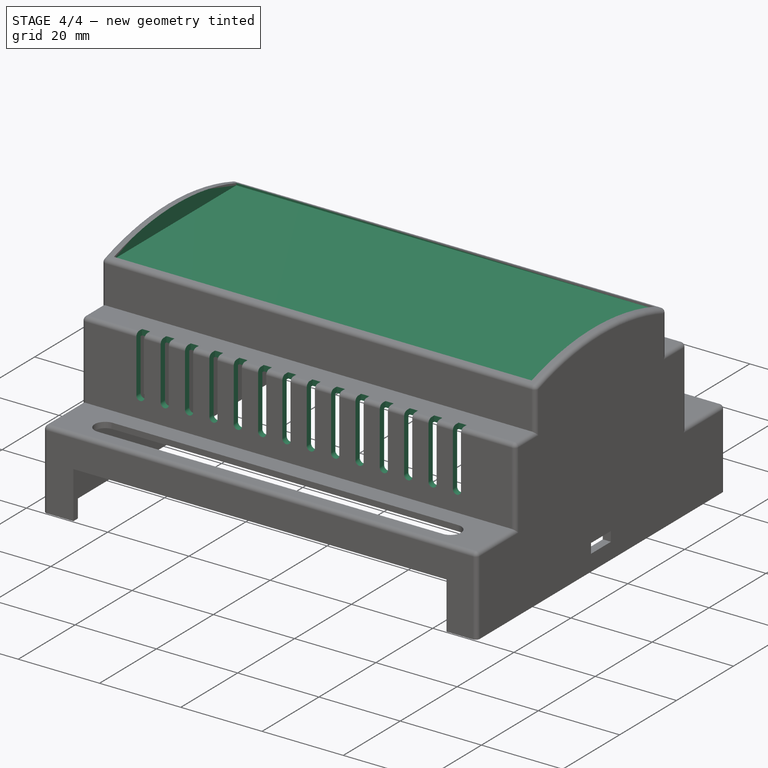
[diagram: stage 4 of 4 — iso view after this stage's code; geometry added in this stage tinted green]
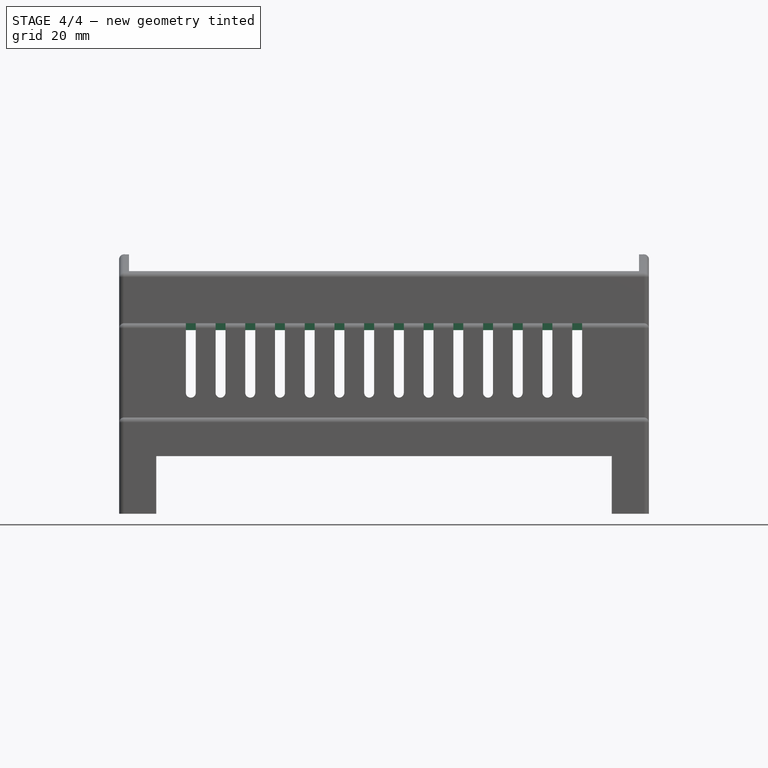
[diagram: stage 4 of 4 — front view after this stage's code; geometry added in this stage tinted green]
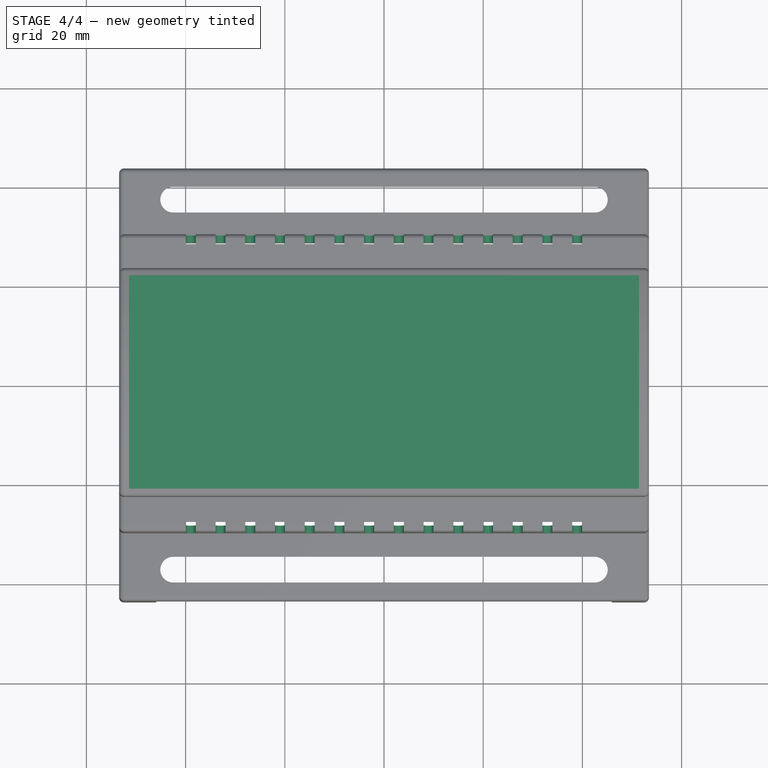
[diagram: stage 4 of 4 — top view after this stage's code; geometry added in this stage tinted green]
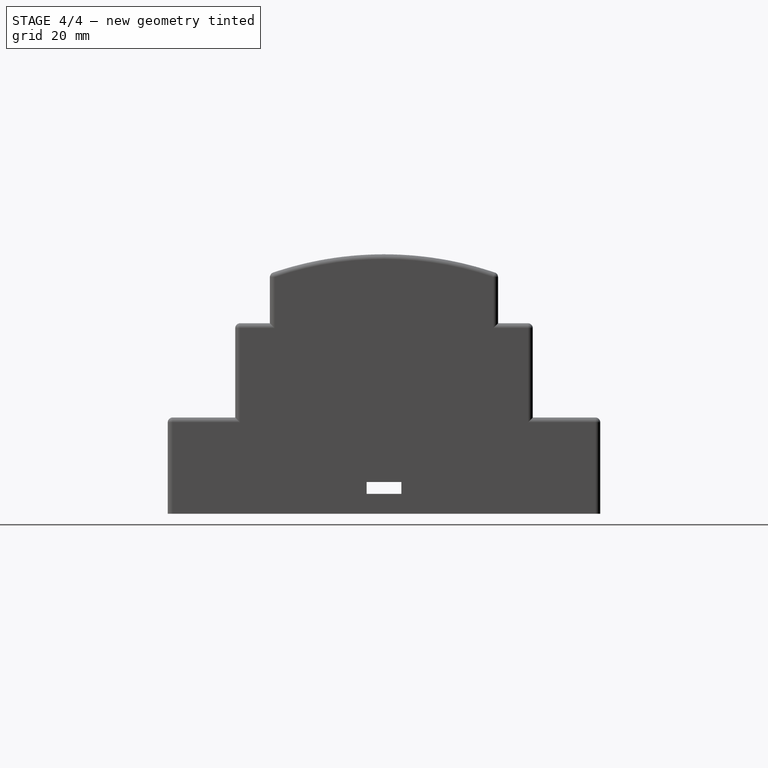
[diagram: stage 4 of 4 — right view after this stage's code; geometry added in this stage tinted green]
FEATURE [PartDesign::Pocket] Pocket004
  BaseFeature = -> Fillet
  Direction = (1e-16,-1,1.9e-15)
  Length = 2
  Length2 = 5
  Placement = pos=(0,0,0) rot=(1,1,1;2.0944rad)
  Profile = -> Sketch007
  ReferenceAxis = -> Sketch007 [N_Axis]
  Refine = true
  Suppressed = false
  Type = 0
FEATURE [Sketcher::SketchObject] Sketch009
  ArcFitTolerance = 1e-06
  AttachmentSupport = -> [Pocket004]
  ExternalGeometry = -> [Pocket004]
  FullyConstrained = true
  MakeInternals = false
  MapMode = 5
  Placement = pos=(-6.7e-15,-30,8.33e-14) rot=(0.57735,0.57735,-0.57735;2.0944rad)
  sketch-geometry (69):
    g0: LineSegment StartX=-38.4 StartY=-39.95 StartZ=0 EndX=-24.4 EndY=-39.95 EndZ=0
    g1: ArcOfCircle CenterX=-24.4 CenterY=-38.95 CenterZ=0 NormalX=0 NormalY=0 NormalZ=1 AngleXU=0 Radius=1 StartAngle=4.71239 EndAngle=7.85398
    g2: LineSegment StartX=-24.4 StartY=-37.95 StartZ=0 EndX=-38.4 EndY=-37.95 EndZ=0
    g3: LineSegment StartX=-38.4 StartY=-37.95 StartZ=0 EndX=-38.4 EndY=-39.95 EndZ=0
    g4: LineSegment StartX=-38.4 StartY=-33.9577 StartZ=0 EndX=-24.4 EndY=-33.9577 EndZ=0
    g5: ArcOfCircle CenterX=-24.4 CenterY=-32.9577 CenterZ=0 NormalX=0 NormalY=0 NormalZ=1 AngleXU=0 Radius=1 StartAngle=4.71239 EndAngle=7.85398
    g6: LineSegment StartX=-24.4 StartY=-31.9577 StartZ=0 EndX=-38.4 EndY=-31.9577 EndZ=0
    g7: LineSegment StartX=-38.4 StartY=-31.9577 StartZ=0 EndX=-38.4 EndY=-33.9577 EndZ=0
    g8: LineSegment StartX=-38.4 StartY=-27.9654 StartZ=0 EndX=-24.4 EndY=-27.9654 EndZ=0
    g9: ArcOfCircle CenterX=-24.4 CenterY=-26.9654 CenterZ=0 NormalX=0 NormalY=0 NormalZ=1 AngleXU=0 Radius=1 StartAngle=4.71239 EndAngle=7.85398
    g10: LineSegment StartX=-24.4 StartY=-25.9654 StartZ=0 EndX=-38.4 EndY=-25.9654 EndZ=0
    g11: LineSegment StartX=-38.4 StartY=-25.9654 StartZ=0 EndX=-38.4 EndY=-27.9654 EndZ=0
    g12: LineSegment StartX=-38.4 StartY=-21.9731 StartZ=0 EndX=-24.4 EndY=-21.9731 EndZ=0
    g13: ArcOfCircle CenterX=-24.4 CenterY=-20.9731 CenterZ=0 NormalX=0 NormalY=0 NormalZ=1 AngleXU=0 Radius=1 StartAngle=4.71239 EndAngle=7.85398
    g14: LineSegment StartX=-24.4 StartY=-19.9731 StartZ=0 EndX=-38.4 EndY=-19.9731 EndZ=0
    g15: LineSegment StartX=-38.4 StartY=-19.9731 StartZ=0 EndX=-38.4 EndY=-21.9731 EndZ=0
    g16: LineSegment StartX=-38.4 StartY=-15.9808 StartZ=0 EndX=-24.4 EndY=-15.9808 EndZ=0
    g17: ArcOfCircle CenterX=-24.4 CenterY=-14.9808 CenterZ=0 NormalX=0 NormalY=0 NormalZ=1 AngleXU=0 Radius=1 StartAngle=4.71239 EndAngle=7.85398
    g18: LineSegment StartX=-24.4 StartY=-13.9808 StartZ=0 EndX=-38.4 EndY=-13.9808 EndZ=0
    g19: LineSegment StartX=-38.4 StartY=-13.9808 StartZ=0 EndX=-38.4 EndY=-15.9808 EndZ=0
    g20: LineSegment StartX=-38.4 StartY=-9.98846 StartZ=0 EndX=-24.4 EndY=-9.98846 EndZ=0
    g21: ArcOfCircle CenterX=-24.4 CenterY=-8.98846 CenterZ=0 NormalX=0 NormalY=0 NormalZ=1 AngleXU=0 Radius=1 StartAngle=4.71239 EndAngle=7.85398
    g22: LineSegment StartX=-24.4 StartY=-7.98846 StartZ=0 EndX=-38.4 EndY=-7.98846 EndZ=0
    g23: LineSegment StartX=-38.4 StartY=-7.98846 StartZ=0 EndX=-38.4 EndY=-9.98846 EndZ=0
    g24: LineSegment StartX=-38.4 StartY=-3.99615 StartZ=0 EndX=-24.4 EndY=-3.99615 EndZ=0
    g25: ArcOfCircle CenterX=-24.4 CenterY=-2.99615 CenterZ=0 NormalX=0 NormalY=0 NormalZ=1 AngleXU=0 Radius=1 StartAngle=4.71239 EndAngle=7.85398
    g26: LineSegment StartX=-24.4 StartY=-1.99615 StartZ=0 EndX=-38.4 EndY=-1.99615 EndZ=0
    g27: LineSegment StartX=-38.4 StartY=-1.99615 StartZ=0 EndX=-38.4 EndY=-3.99615 EndZ=0
    g28: LineSegment StartX=-38.4 StartY=1.99615 StartZ=0 EndX=-24.4 EndY=1.99615 EndZ=0
    g29: ArcOfCircle CenterX=-24.4 CenterY=2.99615 CenterZ=0 NormalX=0 NormalY=0 NormalZ=1 AngleXU=0 Radius=1 StartAngle=4.71239 EndAngle=7.85398
    g30: LineSegment StartX=-24.4 StartY=3.99615 StartZ=0 EndX=-38.4 EndY=3.99615 EndZ=0
    g31: LineSegment StartX=-38.4 StartY=3.99615 StartZ=0 EndX=-38.4 EndY=1.99615 EndZ=0
    g32: LineSegment StartX=-38.4 StartY=7.98846 StartZ=0 EndX=-24.4 EndY=7.98846 EndZ=0
    g33: ArcOfCircle CenterX=-24.4 CenterY=8.98846 CenterZ=0 NormalX=0 NormalY=0 NormalZ=1 AngleXU=0 Radius=1 StartAngle=4.71239 EndAngle=7.85398
    g34: LineSegment StartX=-24.4 StartY=9.98846 StartZ=0 EndX=-38.4 EndY=9.98846 EndZ=0
    g35: LineSegment StartX=-38.4 StartY=9.98846 StartZ=0 EndX=-38.4 EndY=7.98846 EndZ=0
    g36: LineSegment StartX=-38.4 StartY=13.9808 StartZ=0 EndX=-24.4 EndY=13.9808 EndZ=0
    g37: ArcOfCircle CenterX=-24.4 CenterY=14.9808 CenterZ=0 NormalX=0 NormalY=0 NormalZ=1 AngleXU=0 Radius=1 StartAngle=4.71239 EndAngle=7.85398
    g38: LineSegment StartX=-24.4 StartY=15.9808 StartZ=0 EndX=-38.4 EndY=15.9808 EndZ=0
    g39: LineSegment StartX=-38.4 StartY=15.9808 StartZ=0 EndX=-38.4 EndY=13.9808 EndZ=0
    g40: LineSegment StartX=-38.4 StartY=19.9731 StartZ=0 EndX=-24.4 EndY=19.9731 EndZ=0
    g41: ArcOfCircle CenterX=-24.4 CenterY=20.9731 CenterZ=0 NormalX=0 NormalY=0 NormalZ=1 AngleXU=0 Radius=1 StartAngle=4.71239 EndAngle=7.85398
    g42: LineSegment StartX=-24.4 StartY=21.9731 StartZ=0 EndX=-38.4 EndY=21.9731 EndZ=0
    g43: LineSegment StartX=-38.4 StartY=21.9731 StartZ=0 EndX=-38.4 EndY=19.9731 EndZ=0
    g44: LineSegment StartX=-38.4 StartY=25.9654 StartZ=0 EndX=-24.4 EndY=25.9654 EndZ=0
    g45: ArcOfCircle CenterX=-24.4 CenterY=26.9654 CenterZ=0 NormalX=0 NormalY=0 NormalZ=1 AngleXU=0 Radius=1 StartAngle=4.71239 EndAngle=7.85398
    g46: LineSegment StartX=-24.4 StartY=27.9654 StartZ=0 EndX=-38.4 EndY=27.9654 EndZ=0
    g47: LineSegment StartX=-38.4 StartY=27.9654 StartZ=0 EndX=-38.4 EndY=25.9654 EndZ=0
    g48: LineSegment StartX=-38.4 StartY=31.9577 StartZ=0 EndX=-24.4 EndY=31.9577 EndZ=0
    g49: ArcOfCircle CenterX=-24.4 CenterY=32.9577 CenterZ=0 NormalX=0 NormalY=0 NormalZ=1 AngleXU=0 Radius=1 StartAngle=4.71239 EndAngle=7.85398
    g50: LineSegment StartX=-24.4 StartY=33.9577 StartZ=0 EndX=-38.4 EndY=33.9577 EndZ=0
    g51: LineSegment StartX=-38.4 StartY=33.9577 StartZ=0 EndX=-38.4 EndY=31.9577 EndZ=0
    g52: LineSegment StartX=-38.4 StartY=37.95 StartZ=0 EndX=-24.4 EndY=37.95 EndZ=0
    g53: ArcOfCircle CenterX=-24.4 CenterY=38.95 CenterZ=0 NormalX=0 NormalY=0 NormalZ=1 AngleXU=0 Radius=1 StartAngle=4.71239 EndAngle=7.85398
    g54: LineSegment StartX=-24.4 StartY=39.95 StartZ=0 EndX=-38.4 EndY=39.95 EndZ=0
    g55: LineSegment StartX=-38.4 StartY=39.95 StartZ=0 EndX=-38.4 EndY=37.95 EndZ=0
    g56: LineSegment [constr] StartX=-24.4 StartY=-37.95 StartZ=0 EndX=-24.4 EndY=-33.9577 EndZ=0
    g57: LineSegment [constr] StartX=-24.4 StartY=-31.9577 StartZ=0 EndX=-24.4 EndY=-27.9654 EndZ=0
    g58: LineSegment [constr] StartX=-24.4 StartY=-25.9654 StartZ=0 EndX=-24.4 EndY=-21.9731 EndZ=0
    g59: LineSegment [constr] StartX=-24.4 StartY=-19.9731 StartZ=0 EndX=-24.4 EndY=-15.9808 EndZ=0
    g60: LineSegment [constr] StartX=-24.4 StartY=-13.9808 StartZ=0 EndX=-24.4 EndY=-9.98846 EndZ=0
    g61: LineSegment [constr] StartX=-24.4 StartY=-7.98846 StartZ=0 EndX=-24.4 EndY=-3.99615 EndZ=0
    g62: LineSegment [constr] StartX=-24.4 StartY=-1.99615 StartZ=0 EndX=-24.4 EndY=1.99615 EndZ=0
    g63: LineSegment [constr] StartX=-24.4 StartY=3.99615 StartZ=0 EndX=-24.4 EndY=7.98846 EndZ=0
    g64: LineSegment [constr] StartX=-24.4 StartY=9.98846 StartZ=0 EndX=-24.4 EndY=13.9808 EndZ=0
    g65: LineSegment [constr] StartX=-24.4 StartY=15.9808 StartZ=0 EndX=-24.4 EndY=19.9731 EndZ=0
    g66: LineSegment [constr] StartX=-24.4 StartY=21.9731 StartZ=0 EndX=-24.4 EndY=25.9654 EndZ=0
    g67: LineSegment [constr] StartX=-24.4 StartY=27.9654 StartZ=0 EndX=-24.4 EndY=31.9577 EndZ=0
    g68: LineSegment [constr] StartX=-24.4 StartY=33.9577 StartZ=0 EndX=-24.4 EndY=37.95 EndZ=0
  constraints (193):
    c: Horizontal(g0)
    c: Tangent(g0,g1) = -1.5708
    c: Coincident(g1,g2)
    c: Horizontal(g2)
    c: Coincident(g3,g2)
    c: Coincident(g3,g0)
    c: Horizontal(g4)
    c: Horizontal(g8)
    c: Horizontal(g12)
    c: Horizontal(g16)
    c: Horizontal(g20)
    c: Horizontal(g24)
    c: Horizontal(g28)
    c: Horizontal(g32)
    c: Horizontal(g36)
    c: Horizontal(g40)
    c: Horizontal(g44)
    c: Horizontal(g48)
    c: Horizontal(g52)
    c: Tangent(g4,g5) = -1.5708
    c: Tangent(g8,g9) = -1.5708
    c: Tangent(g12,g13) = -1.5708
    c: Tangent(g16,g17) = -1.5708
    c: Tangent(g20,g21) = -1.5708
    c: Tangent(g24,g25) = -1.5708
    c: Tangent(g28,g29) = -1.5708
    c: Tangent(g32,g33) = -1.5708
    c: Tangent(g36,g37) = -1.5708
    c: Tangent(g40,g41) = -1.5708
    c: Tangent(g44,g45) = -1.5708
    c: Tangent(g48,g49) = -1.5708
    c: Tangent(g52,g53) = -1.5708
    c: Coincident(g5,g6)
    c: Coincident(g9,g10)
    c: Coincident(g13,g14)
    c: Coincident(g17,g18)
    c: Coincident(g21,g22)
    c: Coincident(g25,g26)
    c: Coincident(g29,g30)
    c: Coincident(g33,g34)
    c: Coincident(g37,g38)
    c: Coincident(g41,g42)
    c: Coincident(g45,g46)
    c: Coincident(g49,g50)
    c: Coincident(g53,g54)
    c: Horizontal(g6)
    c: Horizontal(g10)
    c: Horizontal(g14)
    c: Horizontal(g18)
    c: Horizontal(g22)
    c: Horizontal(g26)
    c: Horizontal(g30)
    c: Horizontal(g34)
    c: Horizontal(g38)
    c: Horizontal(g42)
    c: Horizontal(g46)
    c: Horizontal(g50)
    c: Horizontal(g54)
    c: Coincident(g7,g6)
    c: Coincident(g11,g10)
    c: Coincident(g15,g14)
    c: Coincident(g19,g18)
    c: Coincident(g23,g22)
    c: Coincident(g27,g26)
    c: Coincident(g31,g30)
    c: Coincident(g35,g34)
    c: Coincident(g39,g38)
    c: Coincident(g43,g42)
    c: Coincident(g47,g46)
    c: Coincident(g51,g50)
    c: Coincident(g55,g54)
    c: Coincident(g7,g4)
    c: Coincident(g11,g8)
    c: Coincident(g15,g12)
    c: Coincident(g19,g16)
    c: Coincident(g23,g20)
    c: Coincident(g27,g24)
    c: Coincident(g31,g28)
    c: Coincident(g35,g32)
    c: Coincident(g39,g36)
    c: Coincident(g43,g40)
    c: Coincident(g47,g44)
    c: Coincident(g51,g48)
    c: Coincident(g55,g52)
    c: Equal(g3,g7)
    c: Equal(g7,g11)
    c: Equal(g11,g15)
    c: Equal(g15,g19)
    c: Equal(g19,g23)
    c: Equal(g23,g27)
    c: Equal(g27,g31)
    c: Equal(g31,g35)
    c: Equal(g35,g39)
    c: Equal(g39,g43)
    c: Equal(g43,g47)
    c: Equal(g47,g51)
    c: Equal(g51,g55)
    c: Equal(g2,g6)
    c: Equal(g6,g10)
    c: Equal(g10,g14)
    c: Equal(g14,g18)
    c: Equal(g18,g22)
    c: Equal(g22,g26)
    c: Equal(g26,g30)
    c: Equal(g30,g34)
    c: Equal(g34,g38)
    c: Equal(g38,g42)
    c: Equal(g42,g46)
    c: Equal(g46,g50)
    c: Equal(g50,g54)
    c: Coincident(g56,g1)
    c: Coincident(g56,g4)
    c: Coincident(g57,g5)
    c: Coincident(g57,g8)
    c: Coincident(g58,g9)
    c: Coincident(g58,g12)
    c: Coincident(g59,g13)
    c: Coincident(g59,g16)
    c: Coincident(g60,g17)
    c: Coincident(g60,g20)
    c: Coincident(g61,g21)
    c: Coincident(g61,g24)
    c: Coincident(g62,g25)
    c: Coincident(g62,g28)
    c: Coincident(g63,g29)
    c: Coincident(g63,g32)
    c: Coincident(g64,g33)
    c: Coincident(g64,g36)
    c: Coincident(g65,g37)
    c: Coincident(g65,g40)
    c: Coincident(g66,g41)
    c: Coincident(g66,g44)
    c: Coincident(g67,g45)
    c: Coincident(g67,g48)
    c: Coincident(g68,g49)
    c: Coincident(g68,g52)
    c: Equal(g68,g67)
    c: Equal(g67,g66)
    c: Equal(g66,g65)
    c: Equal(g65,g64)
    c: Equal(g64,g63)
    c: Equal(g63,g62)
    c: Equal(g62,g61)
    c: Equal(g61,g60)
    c: Equal(g60,g59)
    c: Equal(g59,g58)
    c: Equal(g58,g57)
    c: Equal(g57,g56)
    c: Distance(g2,g52) = 75.9
    c: Vertical(g68)
    c: Vertical(g67)
    c: Vertical(g66)
    c: Vertical(g65)
    c: Vertical(g64)
    c: Vertical(g63)
    c: Vertical(g61)
    c: Vertical(g60)
    c: Vertical(g59)
    c: Vertical(g58)
    c: Vertical(g57)
    c: Vertical(g56)
    c: Vertical(g3)
    c: Vertical(g11)
    c: Vertical(g7)
    c: Vertical(g15)
    c: Vertical(g19)
    c: Vertical(g23)
    c: Vertical(g27)
    c: Vertical(g31)
    c: Vertical(g35)
    c: Vertical(g39)
    c: Vertical(g43)
    c: Vertical(g47)
    c: Vertical(g51)
    c: Vertical(g55)
    c: Vertical(g1,g0)
    c: Vertical(g4,g5)
    c: Vertical(g8,g9)
    c: Vertical(g12,g13)
    c: Vertical(g16,g17)
    c: Vertical(g20,g21)
    c: Vertical(g24,g25)
    c: Vertical(g28,g29)
    c: Vertical(g32,g33)
    c: Vertical(g36,g37)
    c: Vertical(g40,g41)
    c: Vertical(g44,g45)
    c: Vertical(g48,g49)
    c: Vertical(g52,g53)
    c: PointOnObject(g0,g-3)
    c: Distance(g54,g52) = 2
    c: DistanceX(g54,g53) = 14
    c: Symmetric(g25,g28,g-1)
FEATURE [PartDesign::Pocket] Pocket005
  BaseFeature = -> Pocket004
  Direction = (0,1,-2.7e-15)
  Length = 2
  Length2 = 5
  Placement = pos=(0,0,0) rot=(1,1,1;2.0944rad)
  Profile = -> Sketch009
  ReferenceAxis = -> Sketch009 [N_Axis]
  Refine = true
  Suppressed = false
  Type = 0
FEATURE [Sketcher::SketchObject] Sketch010
  ArcFitTolerance = 1e-06
  AttachmentSupport = -> [Pocket005]
  ExternalGeometry = -> [Pocket005]
  FullyConstrained = true
  MakeInternals = false
  MapMode = 5
  Placement = pos=(-1.305e-13,5.74e-14,47) rot=(0.707107,0.707107,0;3.14159rad)
  sketch-geometry (5):
    g0: LineSegment StartX=-21.5 StartY=-51.4 StartZ=0 EndX=21.5 EndY=-51.4 EndZ=0
    g1: LineSegment StartX=21.5 StartY=-51.4 StartZ=0 EndX=21.5 EndY=51.4 EndZ=0
    g2: LineSegment StartX=21.5 StartY=51.4 StartZ=0 EndX=-21.5 EndY=51.4 EndZ=0
    g3: LineSegment StartX=-21.5 StartY=51.4 StartZ=0 EndX=-21.5 EndY=-51.4 EndZ=0
    g4: GeomPoint [constr] X=0 Y=0 Z=0
  constraints (12):
    c: Coincident(g0,g1)
    c: Coincident(g1,g2)
    c: Coincident(g2,g3)
    c: Coincident(g3,g0)
    c: Horizontal(g0)
    c: Horizontal(g2)
    c: Vertical(g1)
    c: Vertical(g3)
    c: Symmetric(g2,g0,g4)
    c: Coincident(g4,g-1)
    c: PointOnObject(g1,g-3)
    c: PointOnObject(g2,g-4)
FEATURE [PartDesign::Pocket] Pocket006
  BaseFeature = -> Pocket005
  Direction = (-2.8e-15,1.2e-15,1)
  Length = 9
  Length2 = -1.4
  Placement = pos=(0,0,0) rot=(1,1,1;2.0944rad)
  Profile = -> Sketch010
  ReferenceAxis = -> Sketch010 [N_Axis]
  Refine = true
  Suppressed = false
  Type = 4
FEATURE [PartDesign::Body] Body
  AllowCompound = false
  Group = -> [Sketch,Pad,Pocket,Sketch001,Pocket001,Sketch002,Sketch003,Pad001,Sketch004,Pad002,Sketch005,Pad003,Mirrored,Sketch006,Pocket002,Sketch007,Sketch008,Pocket003,Fillet,Pocket004,Sketch009,Pocket005,Sketch010,Pocket006]
  Origin = -> Origin
  Tip = -> Pocket006
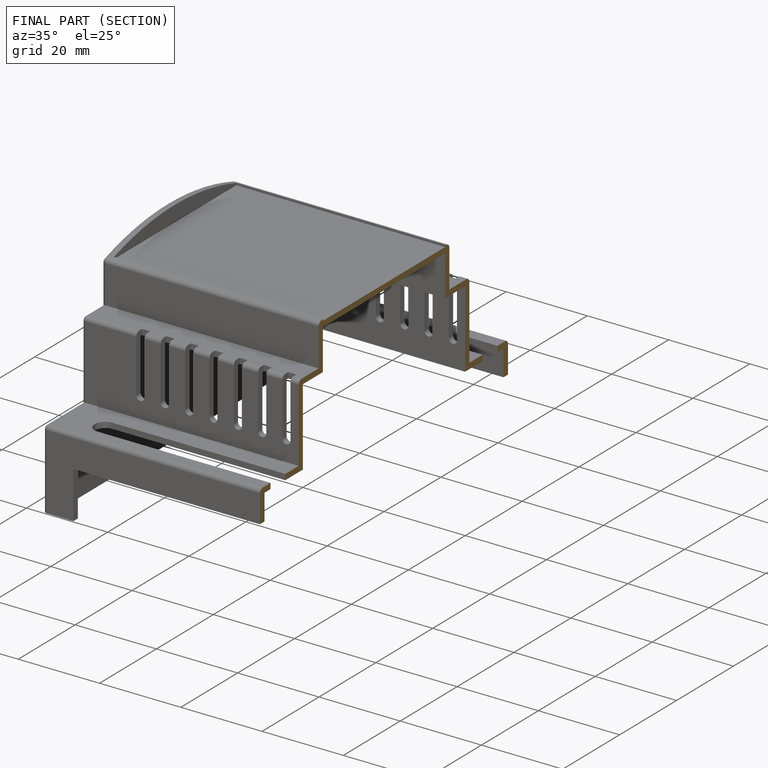
[diagram: finished part — half-section view (interior)]
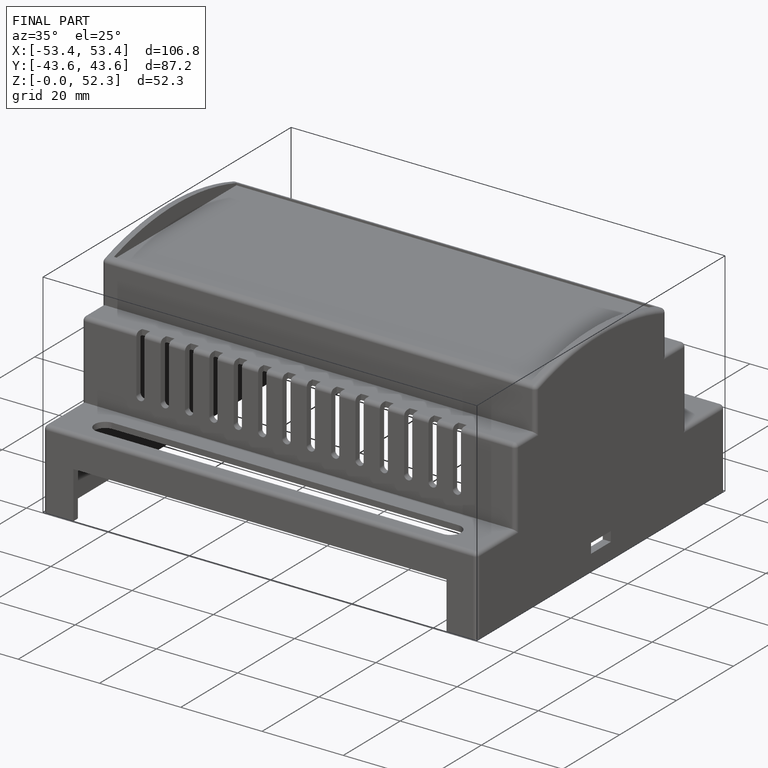
[diagram: finished part — iso view with bounding-box wireframe]
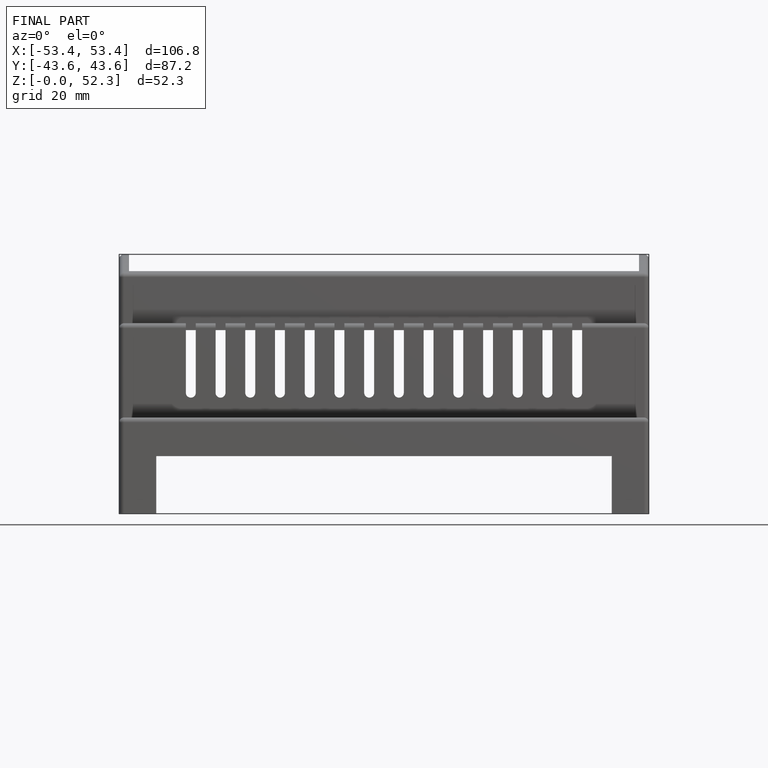
[diagram: finished part — front view with bounding-box wireframe]
